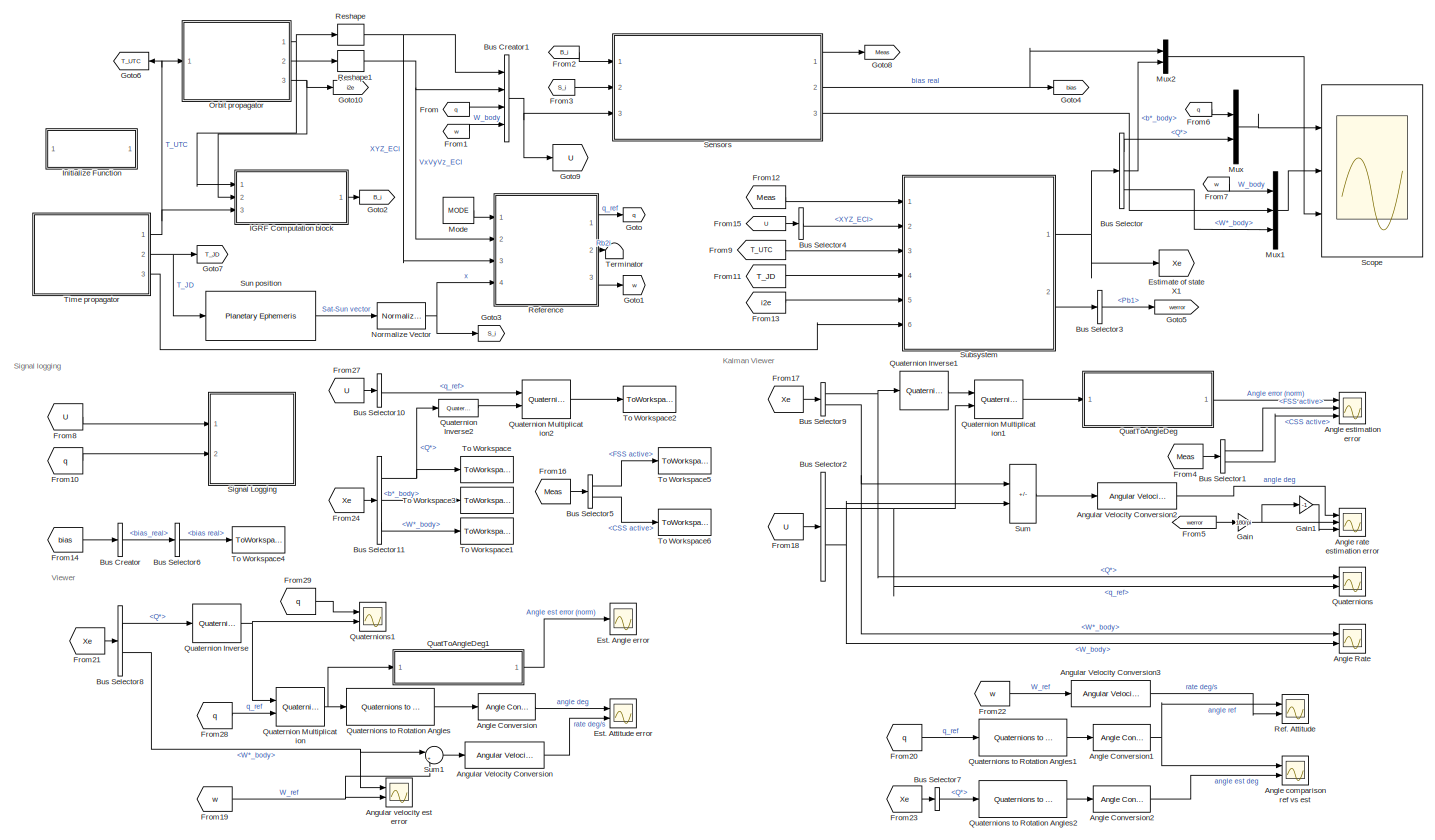
[diagram: root canvas - part 1/1, most of the canvas]
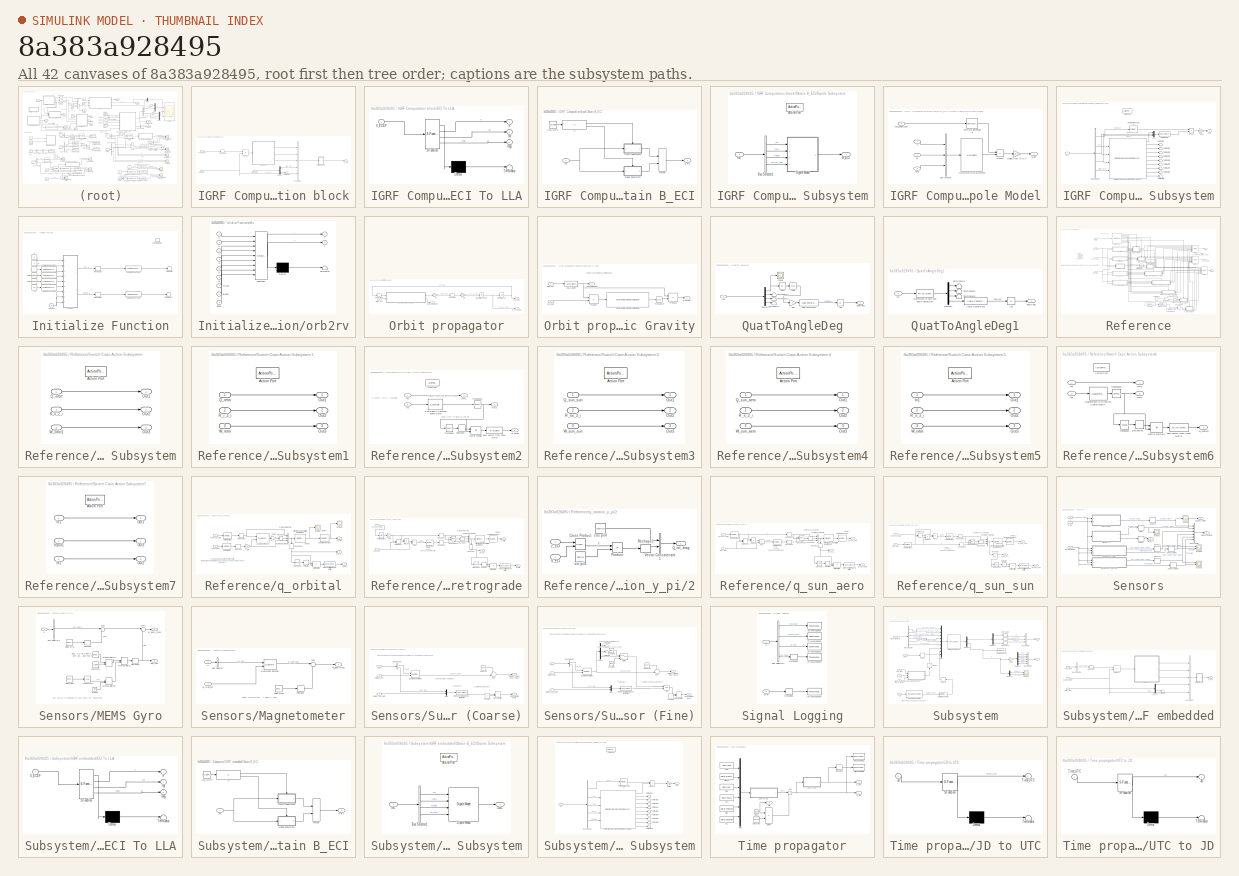
[diagram: thumbnail index - all 42 canvases of the model, root first then tree order]
MODEL slx_8a383a928495
KIND model
CONFIG AbsTol = auto
CONFIG EnableMultiTasking = off
CONFIG FixedStep = delta_t
CONFIG MaxStep = auto
CONFIG MinStep = auto
CONFIG RelTol = 1e-3
CONFIG SampleTimeConstraint = Unconstrained
CONFIG SolverName = FixedStepAuto
CONFIG StartTime = 0.0
CONFIG StopTime = tsimulation
BLOCK [Reference] Angle Conversion  REF=aerolibconvert2/Angle Conversion
  Ports = [1, 1]
  SourceBlock = aerolibconvert2/Angle Conversion
  SourceProductBaseCode = AE
  SourceType = Angle Conversion
BLOCK [Reference] Angle Conversion1  REF=aerolibconvert2/Angle Conversion
  Ports = [1, 1]
  SourceBlock = aerolibconvert2/Angle Conversion
  SourceProductBaseCode = AE
  SourceType = Angle Conversion
BLOCK [Reference] Angle Conversion2  REF=aerolibconvert2/Angle Conversion
  Ports = [1, 1]
  SourceBlock = aerolibconvert2/Angle Conversion
  SourceProductBaseCode = AE
  SourceType = Angle Conversion
BLOCK [Scope] Angle Rate
  Floating = off
  NumInputPorts = 2
  Ports = [2]
  ScopeSpecificationString = Simulink.scopes.TimeScopeBlockCfg('CurrentConfiguration', extmgr.ConfigurationSet(extmgr.Configuration('Core','General UI',true,'FigureColor',[1 1 1]),extmgr.Configuration('Core','Source UI',true),extmgr.Configuration('Sources','WiredSimulink',true,'DataLoggingVariableName','ScopeData1'),extmgr.Configuration('Visuals','Time Domain',true,'SerializedDisplays',{struct('MinYLimReal','-0.00105','MaxYLi...<+1819ch>
BLOCK [Scope] Angle comparison ref vs est
  Floating = off
  NumInputPorts = 2
  Ports = [2]
  ScopeSpecificationString = Simulink.scopes.TimeScopeBlockCfg('CurrentConfiguration', extmgr.ConfigurationSet(extmgr.Configuration('Core','General UI',true,'FigureColor',[0 0 0]),extmgr.Configuration('Core','Source UI',true),extmgr.Configuration('Sources','WiredSimulink',true,'DataLoggingVariableName','ScopeData1'),extmgr.Configuration('Visuals','Time Domain',true,'TimeAxisLabels','All','SerializedDisplays',{struct('MinYLimR...<+2642ch>
BLOCK [Scope] Angle estimation error
  Floating = off
  NumInputPorts = 3
  Ports = [3]
  ScopeSpecificationString = Simulink.scopes.TimeScopeBlockCfg('CurrentConfiguration', extmgr.ConfigurationSet(extmgr.Configuration('Core','General UI',true,'FigureColor',[1 1 1]),extmgr.Configuration('Core','Source UI',true),extmgr.Configuration('Sources','WiredSimulink',true,'DataLoggingVariableName','ScopeData2'),extmgr.Configuration('Visuals','Time Domain',true,'SerializedDisplays',{struct('MinYLimReal','-3.60179','MaxYLi...<+2987ch>
BLOCK [Scope] Angle rate estimation error
  Floating = off
  NumInputPorts = 3
  Ports = [3]
  ScopeSpecificationString = Simulink.scopes.TimeScopeBlockCfg('CurrentConfiguration', extmgr.ConfigurationSet(extmgr.Configuration('Core','General UI',true,'FigureColor',[1 1 1]),extmgr.Configuration('Core','Source UI',true),extmgr.Configuration('Sources','WiredSimulink',true,'DataLoggingVariableName','ScopeData3'),extmgr.Configuration('Visuals','Time Domain',true,'SerializedDisplays',{struct('MinYLimReal','-0.59224','MaxYLi...<+1989ch>
BLOCK [Reference] Angular Velocity Conversion  REF=aerolibconvert2/Angular Velocity
Conversion
  Ports = [1, 1]
  SourceBlock = aerolibconvert2/Angular Velocity\nConversion
  SourceProductBaseCode = AE
  SourceType = Angular Velocity Conversion
BLOCK [Reference] Angular Velocity Conversion2  REF=aerolibconvert2/Angular Velocity
Conversion
  Ports = [1, 1]
  SourceBlock = aerolibconvert2/Angular Velocity\nConversion
  SourceProductBaseCode = AE
  SourceType = Angular Velocity Conversion
BLOCK [Reference] Angular Velocity Conversion3  REF=aerolibconvert2/Angular Velocity
Conversion
  Ports = [1, 1]
  SourceBlock = aerolibconvert2/Angular Velocity\nConversion
  SourceProductBaseCode = AE
  SourceType = Angular Velocity Conversion
BLOCK [Scope] Angular velocity est error
  Floating = off
  NumInputPorts = 2
  Ports = [2]
  ScopeSpecificationString = Simulink.scopes.TimeScopeBlockCfg('CurrentConfiguration', extmgr.ConfigurationSet(extmgr.Configuration('Core','General UI',true),extmgr.Configuration('Core','Source UI',true),extmgr.Configuration('Sources','WiredSimulink',true,'DataLoggingVariableName','ScopeData3'),extmgr.Configuration('Visuals','Time Domain',true,'SerializedDisplays',{struct('MinYLimReal','-0.08945','MaxYLimReal','0.1069','YLabe...<+2286ch>
BLOCK [BusCreator] Bus Creator
  DisplayOption = bar
  InheritFromInputs = on
  Inputs = 1
  Ports = [1, 1]
BLOCK [BusCreator] Bus Creator1
  DisplayOption = bar
  InheritFromInputs = on
  Inputs = 4
  Ports = [4, 1]
BLOCK [BusSelector] Bus Selector
  OutputSignals = Q*,b*_body,W*_body
  Ports = [1, 3]
BLOCK [BusSelector] Bus Selector1
  OutputSignals = FSS active,CSS active
  Ports = [1, 2]
BLOCK [BusSelector] Bus Selector10
  OutputSignals = q_ref
  Ports = [1, 1]
BLOCK [BusSelector] Bus Selector11
  OutputSignals = Q*,b*_body,W*_body
  Ports = [1, 3]
BLOCK [BusSelector] Bus Selector2
  OutputSignals = q_ref,W_body
  Ports = [1, 2]
BLOCK [BusSelector] Bus Selector3
  OutputSignals = Pb1
  Ports = [1, 1]
BLOCK [BusSelector] Bus Selector4
  OutputSignals = XYZ_ECI
  Ports = [1, 1]
BLOCK [BusSelector] Bus Selector5
  OutputSignals = FSS active,CSS active
  Ports = [1, 2]
BLOCK [BusSelector] Bus Selector6
  OutputSignals = bias real
  Ports = [1, 1]
BLOCK [BusSelector] Bus Selector7
  OutputSignals = Q*
  Ports = [1, 1]
BLOCK [BusSelector] Bus Selector8
  OutputSignals = Q*,W*_body
  Ports = [1, 2]
BLOCK [BusSelector] Bus Selector9
  OutputSignals = Q*,W*_body
  Ports = [1, 2]
BLOCK [Scope] Est. Angle error
  Floating = off
  NumInputPorts = 1
  Ports = [1]
  ScopeSpecificationString = Simulink.scopes.TimeScopeBlockCfg('CurrentConfiguration', extmgr.ConfigurationSet(extmgr.Configuration('Core','General UI',true,'FigureColor',[0 0 0]),extmgr.Configuration('Core','Source UI',true),extmgr.Configuration('Sources','WiredSimulink',true,'DataLoggingVariableName','ScopeData2'),extmgr.Configuration('Visuals','Time Domain',true,'SerializedDisplays',{struct('MinYLimReal','-3.96833','MaxYLi...<+2514ch>
BLOCK [Scope] Est. Attitude error
  Floating = off
  NumInputPorts = 2
  Ports = [2]
  ScopeSpecificationString = Simulink.scopes.TimeScopeBlockCfg('CurrentConfiguration', extmgr.ConfigurationSet(extmgr.Configuration('Core','General UI',true,'FigureColor',[0 0 0]),extmgr.Configuration('Core','Source UI',true),extmgr.Configuration('Sources','WiredSimulink',true,'DataLoggingVariableName','ScopeData4'),extmgr.Configuration('Visuals','Time Domain',true,'TimeAxisLabels','All','SerializedDisplays',{struct('MinYLimR...<+2609ch>
BLOCK [Goto] Estimate of state X1
  GotoTag = Xe
  NameLocation = right
BLOCK [From] From
  GotoTag = q
BLOCK [From] From1
  GotoTag = w
BLOCK [From] From10
  GotoTag = q
BLOCK [From] From11
  GotoTag = T_JD
BLOCK [From] From12
  GotoTag = Meas
BLOCK [From] From13
  GotoTag = i2e
BLOCK [From] From14
  GotoTag = bias
BLOCK [From] From15
  GotoTag = U
BLOCK [From] From16
  GotoTag = Meas
BLOCK [From] From17
  GotoTag = Xe
BLOCK [From] From18
  GotoTag = U
BLOCK [From] From19
  GotoTag = w
BLOCK [From] From2
  GotoTag = B_i
BLOCK [From] From20
  GotoTag = q
BLOCK [From] From21
  GotoTag = Xe
BLOCK [From] From22
  GotoTag = w
BLOCK [From] From23
  GotoTag = Xe
BLOCK [From] From24
  GotoTag = Xe
BLOCK [From] From27
  GotoTag = U
BLOCK [From] From28
  GotoTag = q
BLOCK [From] From29
  GotoTag = q
BLOCK [From] From3
  GotoTag = S_i
BLOCK [From] From4
  GotoTag = Meas
BLOCK [From] From5
  GotoTag = werror
BLOCK [From] From6
  GotoTag = q
BLOCK [From] From7
  GotoTag = w
BLOCK [From] From8
  GotoTag = U
BLOCK [From] From9
  GotoTag = T_UTC
BLOCK [Gain] Gain
  Gain = 180/pi
BLOCK [Gain] Gain1
  Gain = -1
BLOCK [Goto] Goto
  GotoTag = q
BLOCK [Goto] Goto1
  GotoTag = w
BLOCK [Goto] Goto10
  GotoTag = i2e
BLOCK [Goto] Goto2
  GotoTag = B_i
BLOCK [Goto] Goto3
  GotoTag = S_i
BLOCK [Goto] Goto4
  GotoTag = bias
BLOCK [Goto] Goto5
  GotoTag = werror
BLOCK [Goto] Goto6
  GotoTag = T_UTC
  NameLocation = top
BLOCK [Goto] Goto7
  GotoTag = T_JD
BLOCK [Goto] Goto8
  GotoTag = Meas
BLOCK [Goto] Goto9
  GotoTag = U
BLOCK [SubSystem] IGRF Computation block
  NameLocation = top
  Ports = [3, 1]
  RequestExecContextInheritance = off
BLOCK [Inport] IGRF Computation block/<XYZ_ECI>
BLOCK [Outport] IGRF Computation block/B_ECI
  VectorParamsAs1DForOutWhenUnconnected = off
BLOCK [BusCreator] IGRF Computation block/Bus Creator
  DisplayOption = bar
  InheritFromInputs = on
  Inputs = 5
  Ports = [5, 1]
BLOCK [Inport] IGRF Computation block/DCM_i2e 
  Port = 2
BLOCK [Demux] IGRF Computation block/Demux
  Outputs = 2
  Ports = [1, 2]
BLOCK [SubSystem] IGRF Computation block/ECI To LLA
  ErrorFcn = Stateflow.Translate.translate
  PermitHierarchicalResolution = ExplicitOnly
  Ports = [1, 3]
  RequestExecContextInheritance = off
  SFBlockType = MATLAB Function
  TreatAsAtomicUnit = on
BLOCK [Demux] IGRF Computation block/ECI To LLA/ Demux 
  Outputs = 1
  Ports = [1, 1]
BLOCK [S-Function] IGRF Computation block/ECI To LLA/ SFunction 
  EnableBusSupport = on
  FunctionName = sf_sfun
  PortCounts = [1 4]
  Ports = [1, 4]
  SFcnIsStateOwnerBlock = off
  SFunctionDeploymentMode = off
  Tag = Stateflow S-Function 3
BLOCK [Terminator] IGRF Computation block/ECI To LLA/ Terminator 
BLOCK [Inport] IGRF Computation block/ECI To LLA/X_ECEF
BLOCK [Outport] IGRF Computation block/ECI To LLA/h
  VectorParamsAs1DForOutWhenUnconnected = off
BLOCK [Outport] IGRF Computation block/ECI To LLA/lat
  Port = 2
  VectorParamsAs1DForOutWhenUnconnected = off
BLOCK [Outport] IGRF Computation block/ECI To LLA/long
  Port = 3
  VectorParamsAs1DForOutWhenUnconnected = off
BLOCK [SubSystem] IGRF Computation block/Obtain B_ECI
  Ports = [1, 1]
  RequestExecContextInheritance = off
BLOCK [SubSystem] IGRF Computation block/Obtain B_ECI/Dipole Subsystem
  Ports = [1, 1, 0, 0, 0, 0, 0, 1]
  RequestExecContextInheritance = off
  TreatAsAtomicUnit = on
BLOCK [ActionPort] IGRF Computation block/Obtain B_ECI/Dipole Subsystem/Action Port
BLOCK [Outport] IGRF Computation block/Obtain B_ECI/Dipole Subsystem/B_ECI 
  VectorParamsAs1DForOutWhenUnconnected = off
BLOCK [BusSelector] IGRF Computation block/Obtain B_ECI/Dipole Subsystem/Bus Selector1
  OutputSignals = h,lat,long,DCM_i2e
  Ports = [1, 4]
BLOCK [SubSystem] IGRF Computation block/Obtain B_ECI/Dipole Subsystem/Dipole Model
  AncestorBlock = DipoleModel/Dipole Model
  Ports = [4, 1]
  RequestExecContextInheritance = off
BLOCK [Outport] IGRF Computation block/Obtain B_ECI/Dipole Subsystem/Dipole Model/B_ECI 
  VectorParamsAs1DForOutWhenUnconnected = off
BLOCK [BusCreator] IGRF Computation block/Obtain B_ECI/Dipole Subsystem/Dipole Model/Bus Creator
  DisplayOption = bar
  InheritFromInputs = on
  Inputs = 3
  Ports = [3, 1]
BLOCK [Inport] IGRF Computation block/Obtain B_ECI/Dipole Subsystem/Dipole Model/ECI2ECEF_DCM
  Port = 4
BLOCK [MATLABFcn] IGRF Computation block/Obtain B_ECI/Dipole Subsystem/Dipole Model/Interpreted MATLAB Function
  MATLABFcn = DipoleMod(u(1),u(2),u(3),date_IGRF,nmax)
  Ports = [1, 1]
BLOCK [PermuteDimensions] IGRF Computation block/Obtain B_ECI/Dipole Subsystem/Dipole Model/Permute Dimensions
BLOCK [Product] IGRF Computation block/Obtain B_ECI/Dipole Subsystem/Dipole Model/Product
  Multiplication = Matrix(*)
  Ports = [2, 1]
BLOCK [Inport] IGRF Computation block/Obtain B_ECI/Dipole Subsystem/Dipole Model/h
BLOCK [Inport] IGRF Computation block/Obtain B_ECI/Dipole Subsystem/Dipole Model/lat 
  Port = 2
BLOCK [Inport] IGRF Computation block/Obtain B_ECI/Dipole Subsystem/Dipole Model/long
  Port = 3
BLOCK [Gain] IGRF Computation block/Obtain B_ECI/Dipole Subsystem/Dipole Model/scaling from nT to T
  Gain = 1e-9
BLOCK [Inport] IGRF Computation block/Obtain B_ECI/Dipole Subsystem/In1
BLOCK [SubSystem] IGRF Computation block/Obtain B_ECI/IGRF Subsystem
  Ports = [1, 1, 0, 0, 0, 0, 0, 1]
  RequestExecContextInheritance = off
  TreatAsAtomicUnit = on
BLOCK [ActionPort] IGRF Computation block/Obtain B_ECI/IGRF Subsystem/Action Port
BLOCK [BusSelector] IGRF Computation block/Obtain B_ECI/IGRF Subsystem/Bus Selector
  OutputSignals = DCM_i2e,h,lat,long,time_UTC
  Ports = [1, 5]
BLOCK [Inport] IGRF Computation block/Obtain B_ECI/IGRF Subsystem/In1
BLOCK [Reference] IGRF Computation block/Obtain B_ECI/IGRF Subsystem/International Geomagnetic Reference Field 12  REF=aerolibobsolete/International Geomagnetic Reference Field 12
  Ports = [4, 10]
  SourceBlock = aerolibobsolete/International Geomagnetic Reference Field 12
  SourceProductBaseCode = AE
  SourceType = InternationalGeomagneticReferenceField12
BLOCK [Mux] IGRF Computation block/Obtain B_ECI/IGRF Subsystem/Mux
  DisplayOption = bar
  Inputs = 3
  Ports = [3, 1]
BLOCK [MATLABFcn] IGRF Computation block/Obtain B_ECI/IGRF Subsystem/NED to ECEF
  MATLABFcn = NED2ecef
  Output1D = off
  OutputDimensions = [3;1]
  Ports = [1, 1]
BLOCK [Outport] IGRF Computation block/Obtain B_ECI/IGRF Subsystem/Out1
  VectorParamsAs1DForOutWhenUnconnected = off
BLOCK [PermuteDimensions] IGRF Computation block/Obtain B_ECI/IGRF Subsystem/Permute Dimensions
BLOCK [Product] IGRF Computation block/Obtain B_ECI/IGRF Subsystem/Product
  Multiplication = Matrix(*)
  Ports = [2, 1]
BLOCK [Gain] IGRF Computation block/Obtain B_ECI/IGRF Subsystem/T to nT
  Gain = 1E-9
BLOCK [Terminator] IGRF Computation block/Obtain B_ECI/IGRF Subsystem/Terminator1
BLOCK [Terminator] IGRF Computation block/Obtain B_ECI/IGRF Subsystem/Terminator2
BLOCK [Terminator] IGRF Computation block/Obtain B_ECI/IGRF Subsystem/Terminator3
BLOCK [Terminator] IGRF Computation block/Obtain B_ECI/IGRF Subsystem/Terminator4
BLOCK [Terminator] IGRF Computation block/Obtain B_ECI/IGRF Subsystem/Terminator5
BLOCK [Terminator] IGRF Computation block/Obtain B_ECI/IGRF Subsystem/Terminator6
BLOCK [Terminator] IGRF Computation block/Obtain B_ECI/IGRF Subsystem/Terminator7
BLOCK [Terminator] IGRF Computation block/Obtain B_ECI/IGRF Subsystem/Terminator8
BLOCK [Terminator] IGRF Computation block/Obtain B_ECI/IGRF Subsystem/Terminator9
BLOCK [If] IGRF Computation block/Obtain B_ECI/If
  Ports = [1, 2]
BLOCK [Inport] IGRF Computation block/Obtain B_ECI/In1
BLOCK [Merge] IGRF Computation block/Obtain B_ECI/Merge
  Ports = [2, 1]
BLOCK [Outport] IGRF Computation block/Obtain B_ECI/Out1
  VectorParamsAs1DForOutWhenUnconnected = off
BLOCK [Constant] IGRF Computation block/Obtain B_ECI/Use_IGRF
  Value = Use_IGRF
BLOCK [Product] IGRF Computation block/Product
  Multiplication = Matrix(*)
  Ports = [2, 1]
BLOCK [Reshape] IGRF Computation block/Reshape
  OutputDimensionality = Row vector (2-D)
  Ports = [1, 1]
BLOCK [Terminator] IGRF Computation block/Terminator
BLOCK [Inport] IGRF Computation block/Time_UTC 
  Port = 3
BLOCK [SubSystem] Initialize Function
  Ports = []
  RequestExecContextInheritance = off
  TreatAsAtomicUnit = on
BLOCK [Reference] Initialize Function/Angle Conversion2  REF=aerolibconvert2/Angle Conversion
  Ports = [1, 1]
  SourceBlock = aerolibconvert2/Angle Conversion
  SourceProductBaseCode = AE
  SourceType = Angle Conversion
BLOCK [Reference] Initialize Function/Angle Conversion3  REF=aerolibconvert2/Angle Conversion
  Ports = [1, 1]
  SourceBlock = aerolibconvert2/Angle Conversion
  SourceProductBaseCode = AE
  SourceType = Angle Conversion
BLOCK [Reference] Initialize Function/Angle Conversion4  REF=aerolibconvert2/Angle Conversion
  Ports = [1, 1]
  SourceBlock = aerolibconvert2/Angle Conversion
  SourceProductBaseCode = AE
  SourceType = Angle Conversion
BLOCK [Reference] Initialize Function/Angle Conversion5  REF=aerolibconvert2/Angle Conversion
  Ports = [1, 1]
  SourceBlock = aerolibconvert2/Angle Conversion
  SourceProductBaseCode = AE
  SourceType = Angle Conversion
BLOCK [EventListener] Initialize Function/Event Listener
  DisableCoverage = on
  EventName = reset
BLOCK [Ground] Initialize Function/Ground
BLOCK [Reference] Initialize Function/Length Conversion  REF=aerolibconvert2/Length Conversion
  Ports = [1, 1]
  SourceBlock = aerolibconvert2/Length Conversion
  SourceProductBaseCode = AE
  SourceType = Length Conversion
BLOCK [Constant] Initialize Function/O
  Value = O
BLOCK [Reshape] Initialize Function/Reshape2
  OutputDimensionality = Column vector (2-D)
  Ports = [1, 1]
BLOCK [Reshape] Initialize Function/Reshape3
  OutputDimensionality = Column vector (2-D)
  Ports = [1, 1]
BLOCK [StateWriter] Initialize Function/State Writer
  StateOwnerBlock = ../../Orbit propagator/Integrator_pos
BLOCK [StateWriter] Initialize Function/State Writer1
  StateOwnerBlock = ../../Orbit propagator/Integrator_speed
BLOCK [Reference] Initialize Function/Velocity Conversion  REF=aerolibconvert2/Velocity Conversion
  Ports = [1, 1]
  SourceBlock = aerolibconvert2/Velocity Conversion
  SourceProductBaseCode = AE
  SourceType = Velocity Conversion
BLOCK [Constant] Initialize Function/a
  Value = a
BLOCK [Constant] Initialize Function/e
  Value = e
BLOCK [Constant] Initialize Function/i
  Value = i
BLOCK [Constant] Initialize Function/nu
  Value = nu
BLOCK [Constant] Initialize Function/o
  Value = o
BLOCK [SubSystem] Initialize Function/orb2rv
  ErrorFcn = Stateflow.Translate.translate
  PermitHierarchicalResolution = ExplicitOnly
  Ports = [9, 2]
  RequestExecContextInheritance = off
  SFBlockType = MATLAB Function
  TreatAsAtomicUnit = on
BLOCK [Demux] Initialize Function/orb2rv/ Demux 
  Outputs = 1
  Ports = [1, 1]
BLOCK [S-Function] Initialize Function/orb2rv/ SFunction 
  EnableBusSupport = on
  FunctionName = sf_sfun
  PortCounts = [9 3]
  Ports = [9, 3]
  SFcnIsStateOwnerBlock = off
  SFunctionDeploymentMode = off
  Tag = Stateflow S-Function 5
BLOCK [Terminator] Initialize Function/orb2rv/ Terminator 
BLOCK [Inport] Initialize Function/orb2rv/O
  Port = 4
BLOCK [Inport] Initialize Function/orb2rv/a
BLOCK [Inport] Initialize Function/orb2rv/argLat
  Port = 8
BLOCK [Inport] Initialize Function/orb2rv/e
  Port = 2
BLOCK [Inport] Initialize Function/orb2rv/i
  Port = 3
BLOCK [Inport] Initialize Function/orb2rv/lonPer
  Port = 9
BLOCK [Inport] Initialize Function/orb2rv/nu
  Port = 6
BLOCK [Inport] Initialize Function/orb2rv/o
  Port = 5
BLOCK [Outport] Initialize Function/orb2rv/r
  VectorParamsAs1DForOutWhenUnconnected = off
BLOCK [Inport] Initialize Function/orb2rv/truLon
  Port = 7
BLOCK [Outport] Initialize Function/orb2rv/v
  Port = 2
  VectorParamsAs1DForOutWhenUnconnected = off
BLOCK [Constant] Mode
  NameLocation = top
  OutDataTypeStr = int8
  Value = MODE
BLOCK [Mux] Mux
  DisplayOption = bar
  Inputs = 2
  Ports = [2, 1]
BLOCK [Mux] Mux1
  DisplayOption = bar
  Inputs = 3
  Ports = [3, 1]
BLOCK [Mux] Mux2
  DisplayOption = bar
  Inputs = 2
  Ports = [2, 1]
BLOCK [Reference] Normalize Vector  REF=vrlib/Utilities/Normalize Vector
  Ports = [1, 1]
  SourceBlock = vrlib/Utilities/Normalize Vector
  SourceProductBaseCode = SL
  SourceType = Normalize Vector
BLOCK [SubSystem] Orbit propagator
  Ports = [1, 3]
  RequestExecContextInheritance = off
BLOCK [Gain] Orbit propagator/1//m
  Gain = 1/m
BLOCK [Outport] Orbit propagator/DCM_ECI2ECEF
  Port = 3
BLOCK [Integrator] Orbit propagator/Integrator_pos
  Ports = [1, 1]
BLOCK [Integrator] Orbit propagator/Integrator_speed
  Ports = [1, 1]
BLOCK [Reshape] Orbit propagator/Reshape
  OutputDimensionality = Column vector (2-D)
  Ports = [1, 1]
BLOCK [Reshape] Orbit propagator/Reshape2
  OutputDimensionality = Column vector (2-D)
  Ports = [1, 1]
BLOCK [SubSystem] Orbit propagator/Spherical Harmonic Gravity
  Ports = [2, 2]
  RequestExecContextInheritance = off
  SystemSampleTime = 1
  TreatAsAtomicUnit = on
BLOCK [Outport] Orbit propagator/Spherical Harmonic Gravity/DCM_ECI2ECEF
  Port = 2
BLOCK [MATLABFcn] Orbit propagator/Spherical Harmonic Gravity/ECI_2_ECEF
  MATLABFcn = eci2ecef
  Output1D = off
  OutputDimensions = [3,3]
  Ports = [1, 1]
BLOCK [Product] Orbit propagator/Spherical Harmonic Gravity/Product
  Multiplication = Matrix(*)
  Ports = [2, 1]
BLOCK [Product] Orbit propagator/Spherical Harmonic Gravity/Product1
  Inputs = /*
  Multiplication = Matrix(*)
  Ports = [2, 1]
BLOCK [Reference] Orbit propagator/Spherical Harmonic Gravity/Spherical Harmonic Gravity Model  REF=aerolibgravity2/Spherical Harmonic Gravity Model
  Ports = [1, 1]
  SourceBlock = aerolibgravity2/Spherical Harmonic Gravity Model
  SourceProductBaseCode = AE
  SourceType = Spherical Harmonic Gravity Model
BLOCK [Inport] Orbit propagator/Spherical Harmonic Gravity/Time_UTC
  Port = 2
BLOCK [Math] Orbit propagator/Spherical Harmonic Gravity/Transpose
  Operator = transpose
  Ports = [1, 1]
  SignedPower = on
BLOCK [Inport] Orbit propagator/Spherical Harmonic Gravity/XYZ_ECI
BLOCK [Outport] Orbit propagator/Spherical Harmonic Gravity/g_ECI (m//s²)
BLOCK [Inport] Orbit propagator/Time_UTC 
BLOCK [Outport] Orbit propagator/VxVyVz_ECI
  Port = 2
BLOCK [Outport] Orbit propagator/XYZ_ECI
  VectorParamsAs1DForOutWhenUnconnected = off
BLOCK [Gain] Orbit propagator/m
  Gain = m
BLOCK [SubSystem] QuatToAngleDeg
  Ports = [1, 1]
  RequestExecContextInheritance = off
BLOCK [Abs] QuatToAngleDeg/Abs
  SaturateOnIntegerOverflow = off
BLOCK [Abs] QuatToAngleDeg/Abs1
  SaturateOnIntegerOverflow = off
BLOCK [Trigonometry] QuatToAngleDeg/Acos
  Operator = acos
  Ports = [1, 1]
BLOCK [Reference] QuatToAngleDeg/Angle Conversion1  REF=aerolibconvert2/Angle Conversion
  Ports = [1, 1]
  SourceBlock = aerolibconvert2/Angle Conversion
  SourceProductBaseCode = AE
  SourceType = Angle Conversion
BLOCK [Demux] QuatToAngleDeg/Demux1
  Ports = [1, 4]
BLOCK [Gain] QuatToAngleDeg/Gain
  Gain = 2
BLOCK [Inport] QuatToAngleDeg/In1
BLOCK [Scope] QuatToAngleDeg/Scope
  Floating = off
  NumInputPorts = 1
  Ports = [1]
  ScopeSpecificationString = Simulink.scopes.TimeScopeBlockCfg('CurrentConfiguration', extmgr.ConfigurationSet(extmgr.Configuration('Core','General UI',true),extmgr.Configuration('Core','Source UI',true),extmgr.Configuration('Sources','WiredSimulink',true,'DataLoggingVariableName','ScopeData1'),extmgr.Configuration('Visuals','Time Domain',true,'SerializedDisplays',{struct('MinYLimReal','-1.25','MaxYLimReal','1.24999','YLabelR...<+1385ch>
BLOCK [Terminator] QuatToAngleDeg/Terminator1
BLOCK [Terminator] QuatToAngleDeg/Terminator2
BLOCK [Terminator] QuatToAngleDeg/Terminator3
BLOCK [Outport] QuatToAngleDeg/angle deg
  VectorParamsAs1DForOutWhenUnconnected = off
BLOCK [SubSystem] QuatToAngleDeg1
  NameLocation = top
  Ports = [1, 1]
  RequestExecContextInheritance = off
BLOCK [Abs] QuatToAngleDeg1/Abs
  SaturateOnIntegerOverflow = off
BLOCK [Reference] QuatToAngleDeg1/Angle Conversion1  REF=aerolibconvert2/Angle Conversion
  Ports = [1, 1]
  SourceBlock = aerolibconvert2/Angle Conversion
  SourceProductBaseCode = AE
  SourceType = Angle Conversion
BLOCK [Demux] QuatToAngleDeg1/Demux1
  Ports = [1, 4]
BLOCK [Inport] QuatToAngleDeg1/In1
BLOCK [MATLABFcn] QuatToAngleDeg1/Quaternion to axis and angle conversion
  MATLABFcn = quat2axisangle
  Ports = [1, 1]
BLOCK [Terminator] QuatToAngleDeg1/Terminator1
BLOCK [Terminator] QuatToAngleDeg1/Terminator2
BLOCK [Terminator] QuatToAngleDeg1/Terminator3
BLOCK [Outport] QuatToAngleDeg1/angle deg
  VectorParamsAs1DForOutWhenUnconnected = off
BLOCK [Reference] Quaternion Inverse  REF=aerolibutil/Quaternion
Inverse
  Ports = [1, 1]
  SourceBlock = aerolibutil/Quaternion\nInverse
  SourceProductBaseCode = AE
  SourceType = Quaternion Inverse
BLOCK [Reference] Quaternion Inverse1  REF=aerolibutil/Quaternion
Inverse
  Ports = [1, 1]
  SourceBlock = aerolibutil/Quaternion\nInverse
  SourceProductBaseCode = AE
  SourceType = Quaternion Inverse
BLOCK [Reference] Quaternion Inverse2  REF=aerolibutil/Quaternion
Inverse
  Ports = [1, 1]
  SourceBlock = aerolibutil/Quaternion\nInverse
  SourceProductBaseCode = AE
  SourceType = Quaternion Inverse
BLOCK [Reference] Quaternion Multiplication  REF=aerolibutil/Quaternion
Multiplication
  Ports = [2, 1]
  SourceBlock = aerolibutil/Quaternion\nMultiplication
  SourceProductBaseCode = AE
  SourceType = Quaternion Multiplication
BLOCK [Reference] Quaternion Multiplication1  REF=aerolibutil/Quaternion
Multiplication
  Ports = [2, 1]
  SourceBlock = aerolibutil/Quaternion\nMultiplication
  SourceProductBaseCode = AE
  SourceType = Quaternion Multiplication
BLOCK [Reference] Quaternion Multiplication2  REF=aerolibutil/Quaternion
Multiplication
  Ports = [2, 1]
  SourceBlock = aerolibutil/Quaternion\nMultiplication
  SourceProductBaseCode = AE
  SourceType = Quaternion Multiplication
BLOCK [Scope] Quaternions
  Floating = off
  NumInputPorts = 2
  Ports = [2]
  ScopeSpecificationString = Simulink.scopes.TimeScopeBlockCfg('CurrentConfiguration', extmgr.ConfigurationSet(extmgr.Configuration('Core','General UI',true,'FigureColor',[1 1 1]),extmgr.Configuration('Core','Source UI',true),extmgr.Configuration('Sources','WiredSimulink',true,'DataLoggingVariableName','ScopeData4'),extmgr.Configuration('Visuals','Time Domain',true,'SerializedDisplays',{struct('MinYLimReal','-1.24999','MaxYLi...<+1787ch>
BLOCK [Reference] Quaternions to Rotation Angles  REF=sharedtransform/Quaternions to Rotation Angles
  AttributesFormatString = Rotation Order: %<rotationOrder>
  Ports = [1, 1]
  SourceBlock = sharedtransform/Quaternions to Rotation Angles
  SourceProductBaseCode = AE,PW,MT,UV,VE,VP
  SourceType = Quat2Ang
BLOCK [Reference] Quaternions to Rotation Angles1  REF=sharedtransform/Quaternions to Rotation Angles
  AttributesFormatString = Rotation Order: %<rotationOrder>
  Ports = [1, 1]
  SourceBlock = sharedtransform/Quaternions to Rotation Angles
  SourceProductBaseCode = AE,PW,MT,UV,VE,VP
  SourceType = Quat2Ang
BLOCK [Reference] Quaternions to Rotation Angles2  REF=sharedtransform/Quaternions to Rotation Angles
  AttributesFormatString = Rotation Order: %<rotationOrder>
  Ports = [1, 1]
  SourceBlock = sharedtransform/Quaternions to Rotation Angles
  SourceProductBaseCode = AE,PW,MT,UV,VE,VP
  SourceType = Quat2Ang
BLOCK [Scope] Quaternions1
  Floating = off
  NumInputPorts = 2
  Ports = [2]
  ScopeSpecificationString = Simulink.scopes.TimeScopeBlockCfg('CurrentConfiguration', extmgr.ConfigurationSet(extmgr.Configuration('Core','General UI',true),extmgr.Configuration('Core','Source UI',true),extmgr.Configuration('Sources','WiredSimulink',true,'DataLoggingVariableName','ScopeData7'),extmgr.Configuration('Visuals','Time Domain',true,'SerializedDisplays',{struct('MinYLimReal','-1.21502','MaxYLimReal','1.21501','YLab...<+2385ch>
BLOCK [Scope] Ref. Attitude
  Floating = off
  NumInputPorts = 2
  Ports = [2]
  ScopeSpecificationString = Simulink.scopes.TimeScopeBlockCfg('CurrentConfiguration', extmgr.ConfigurationSet(extmgr.Configuration('Core','General UI',true,'FigureColor',[0 0 0]),extmgr.Configuration('Core','Source UI',true),extmgr.Configuration('Sources','WiredSimulink',true,'DataLoggingVariableName','ScopeData9'),extmgr.Configuration('Visuals','Time Domain',true,'TimeAxisLabels','All','SerializedDisplays',{struct('MinYLimR...<+2637ch>
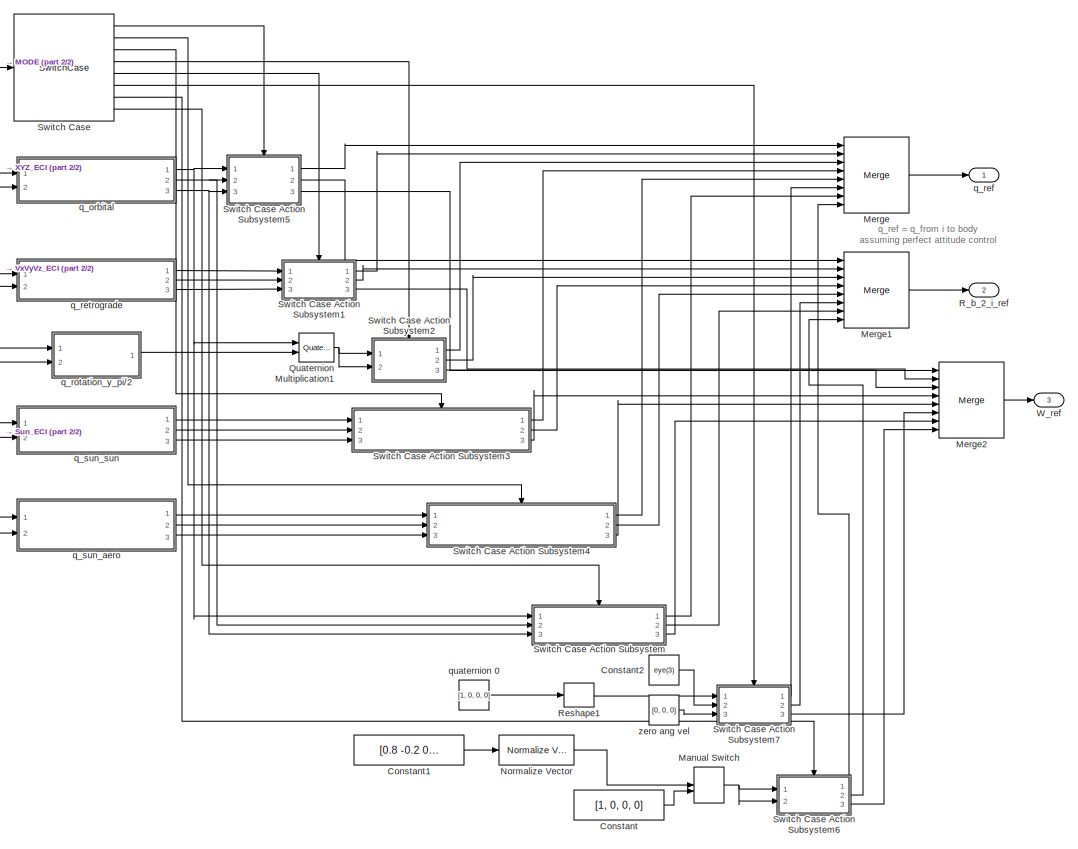
[diagram: Reference - part 1/2, center side, full height]
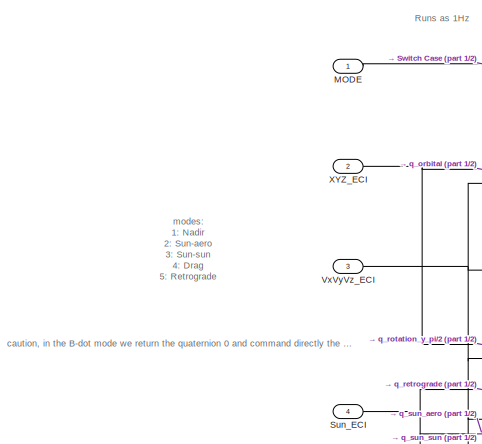
[diagram: Reference - part 2/2, top left region]
BLOCK [SubSystem] Reference
  Ports = [4, 3]
  RequestExecContextInheritance = off
  TreatAsAtomicUnit = on
BLOCK [Constant] Reference/Constant
  Value = [1, 0, 0, 0]
BLOCK [Constant] Reference/Constant1
  Value = [0.8 -0.2 0.1 0.5]'
BLOCK [Constant] Reference/Constant2
  Value = eye(3)
BLOCK [Inport] Reference/MODE
  OutDataTypeStr = int8
  OutMax = 100
  OutMin = 1
BLOCK [ManualSwitch] Reference/Manual Switch
BLOCK [Merge] Reference/Merge
  Inputs = 8
  Ports = [8, 1]
BLOCK [Merge] Reference/Merge1
  Inputs = 8
  Ports = [8, 1]
BLOCK [Merge] Reference/Merge2
  Inputs = 8
  Ports = [8, 1]
BLOCK [Reference] Reference/Normalize Vector  REF=vrlib/Utilities/Normalize Vector
  Ports = [1, 1]
  SourceBlock = vrlib/Utilities/Normalize Vector
  SourceProductBaseCode = SL
  SourceType = Normalize Vector
BLOCK [Reference] Reference/Quaternion Multiplication1  REF=aerolibutil/Quaternion
Multiplication
  Ports = [2, 1]
  SourceBlock = aerolibutil/Quaternion\nMultiplication
  SourceProductBaseCode = AE
  SourceType = Quaternion Multiplication
BLOCK [Outport] Reference/R_b_2_i_ref
  Port = 2
BLOCK [Reshape] Reference/Reshape1
  OutputDimensionality = Column vector (2-D)
  Ports = [1, 1]
BLOCK [Inport] Reference/Sun_ECI
  Port = 4
BLOCK [SwitchCase] Reference/Switch Case
  CaseConditions = {1, 2, 3, 4, 5, 6, 7}
  Ports = [1, 8]
BLOCK [SubSystem] Reference/Switch Case Action Subsystem
  Ports = [3, 3, 0, 0, 0, 0, 0, 1]
  RequestExecContextInheritance = off
  TreatAsAtomicUnit = on
BLOCK [ActionPort] Reference/Switch Case Action Subsystem/Action Port
  ActionPortLabel = default:
BLOCK [Outport] Reference/Switch Case Action Subsystem/Out1
  VectorParamsAs1DForOutWhenUnconnected = off
BLOCK [Outport] Reference/Switch Case Action Subsystem/Out2
  Port = 2
  VectorParamsAs1DForOutWhenUnconnected = off
BLOCK [Outport] Reference/Switch Case Action Subsystem/Out3
  Port = 3
  VectorParamsAs1DForOutWhenUnconnected = off
BLOCK [Inport] Reference/Switch Case Action Subsystem/Q_orbit
BLOCK [Inport] Reference/Switch Case Action Subsystem/R_o_2_i
  Port = 2
BLOCK [Inport] Reference/Switch Case Action Subsystem/W_orbit1
  Port = 3
BLOCK [SubSystem] Reference/Switch Case Action Subsystem1
  Ports = [3, 3, 0, 0, 0, 0, 0, 1]
  RequestExecContextInheritance = off
  TreatAsAtomicUnit = on
BLOCK [ActionPort] Reference/Switch Case Action Subsystem1/Action Port
  ActionPortLabel = case [ 5 ]:
BLOCK [Outport] Reference/Switch Case Action Subsystem1/Out1
  VectorParamsAs1DForOutWhenUnconnected = off
BLOCK [Outport] Reference/Switch Case Action Subsystem1/Out2
  Port = 2
  VectorParamsAs1DForOutWhenUnconnected = off
BLOCK [Outport] Reference/Switch Case Action Subsystem1/Out3
  Port = 3
  VectorParamsAs1DForOutWhenUnconnected = off
BLOCK [Inport] Reference/Switch Case Action Subsystem1/Q_retro
BLOCK [Inport] Reference/Switch Case Action Subsystem1/R_r_2_i
  Port = 2
BLOCK [Inport] Reference/Switch Case Action Subsystem1/W_retro
  Port = 3
BLOCK [SubSystem] Reference/Switch Case Action Subsystem2
  Ports = [2, 3, 0, 0, 0, 0, 0, 1]
  RequestExecContextInheritance = off
  TreatAsAtomicUnit = on
BLOCK [ActionPort] Reference/Switch Case Action Subsystem2/Action Port
  ActionPortLabel = case [ 4 ]:
BLOCK [Derivative] Reference/Switch Case Action Subsystem2/Derivative
BLOCK [Inport] Reference/Switch Case Action Subsystem2/In1
BLOCK [Inport] Reference/Switch Case Action Subsystem2/In2
  Port = 2
BLOCK [Product] Reference/Switch Case Action Subsystem2/Matrix Multiply
  Multiplication = Matrix(*)
  Ports = [2, 1]
BLOCK [Outport] Reference/Switch Case Action Subsystem2/Out1
  VectorParamsAs1DForOutWhenUnconnected = off
BLOCK [Outport] Reference/Switch Case Action Subsystem2/Out2
  Port = 2
  VectorParamsAs1DForOutWhenUnconnected = off
BLOCK [Reference] Reference/Switch Case Action Subsystem2/Quaternions to Direction Cosine Matrix  REF=sharedtransform/Quaternions to 
Direction Cosine Matrix
  Ports = [1, 1]
  SourceBlock = sharedtransform/Quaternions to \nDirection Cosine Matrix
  SourceProductBaseCode = AE,PW,MT,UV,VE,VP
  SourceType = Quaternion2DCM
BLOCK [Math] Reference/Switch Case Action Subsystem2/Transpose
  Operator = transpose
  Ports = [1, 1]
BLOCK [Math] Reference/Switch Case Action Subsystem2/Transpose1
  Operator = transpose
  Ports = [1, 1]
BLOCK [Outport] Reference/Switch Case Action Subsystem2/W_drag
  Port = 3
BLOCK [MATLABFcn] Reference/Switch Case Action Subsystem2/gets vector from Skew Matrix
  MATLABFcn = vec_from_skew
  Ports = [1, 1]
BLOCK [SubSystem] Reference/Switch Case Action Subsystem3
  Ports = [3, 3, 0, 0, 0, 0, 0, 1]
  RequestExecContextInheritance = off
  TreatAsAtomicUnit = on
BLOCK [ActionPort] Reference/Switch Case Action Subsystem3/Action Port
  ActionPortLabel = case [ 3 ]:
BLOCK [Outport] Reference/Switch Case Action Subsystem3/Out1
  VectorParamsAs1DForOutWhenUnconnected = off
BLOCK [Outport] Reference/Switch Case Action Subsystem3/Out2
  Port = 2
  VectorParamsAs1DForOutWhenUnconnected = off
BLOCK [Outport] Reference/Switch Case Action Subsystem3/Out3
  Port = 3
  VectorParamsAs1DForOutWhenUnconnected = off
BLOCK [Inport] Reference/Switch Case Action Subsystem3/Q_sun_sun
BLOCK [Inport] Reference/Switch Case Action Subsystem3/R_ss_2_i
  Port = 2
BLOCK [Inport] Reference/Switch Case Action Subsystem3/W_sun_sun
  Port = 3
BLOCK [SubSystem] Reference/Switch Case Action Subsystem4
  Ports = [3, 3, 0, 0, 0, 0, 0, 1]
  RequestExecContextInheritance = off
  TreatAsAtomicUnit = on
BLOCK [ActionPort] Reference/Switch Case Action Subsystem4/Action Port
  ActionPortLabel = case [ 2 ]:
BLOCK [Outport] Reference/Switch Case Action Subsystem4/Out1
  VectorParamsAs1DForOutWhenUnconnected = off
BLOCK [Outport] Reference/Switch Case Action Subsystem4/Out2
  Port = 2
  VectorParamsAs1DForOutWhenUnconnected = off
BLOCK [Outport] Reference/Switch Case Action Subsystem4/Out3
  Port = 3
  VectorParamsAs1DForOutWhenUnconnected = off
BLOCK [Inport] Reference/Switch Case Action Subsystem4/Q_sun_aero
BLOCK [Inport] Reference/Switch Case Action Subsystem4/R_s_2_i
  Port = 2
BLOCK [Inport] Reference/Switch Case Action Subsystem4/W_sun_aero
  Port = 3
BLOCK [SubSystem] Reference/Switch Case Action Subsystem5
  Ports = [3, 3, 0, 0, 0, 0, 0, 1]
  RequestExecContextInheritance = off
  TreatAsAtomicUnit = on
BLOCK [ActionPort] Reference/Switch Case Action Subsystem5/Action Port
  ActionPortLabel = case [ 1 ]:
BLOCK [Inport] Reference/Switch Case Action Subsystem5/In1
BLOCK [Outport] Reference/Switch Case Action Subsystem5/Out1
  VectorParamsAs1DForOutWhenUnconnected = off
BLOCK [Outport] Reference/Switch Case Action Subsystem5/Out2
  Port = 2
  VectorParamsAs1DForOutWhenUnconnected = off
BLOCK [Outport] Reference/Switch Case Action Subsystem5/Out3
  Port = 3
  VectorParamsAs1DForOutWhenUnconnected = off
BLOCK [Inport] Reference/Switch Case Action Subsystem5/R_o_2_i
  Port = 2
BLOCK [Inport] Reference/Switch Case Action Subsystem5/W_orbit
  Port = 3
BLOCK [SubSystem] Reference/Switch Case Action Subsystem6
  Ports = [2, 3, 0, 0, 0, 0, 0, 1]
  RequestExecContextInheritance = off
  TreatAsAtomicUnit = on
BLOCK [ActionPort] Reference/Switch Case Action Subsystem6/Action Port
  ActionPortLabel = case [ 7 ]:
BLOCK [Derivative] Reference/Switch Case Action Subsystem6/Derivative
BLOCK [Inport] Reference/Switch Case Action Subsystem6/In1
BLOCK [Inport] Reference/Switch Case Action Subsystem6/In2
  Port = 2
BLOCK [Product] Reference/Switch Case Action Subsystem6/Matrix Multiply
  Multiplication = Matrix(*)
  Ports = [2, 1]
BLOCK [Outport] Reference/Switch Case Action Subsystem6/Out1
  VectorParamsAs1DForOutWhenUnconnected = off
BLOCK [Outport] Reference/Switch Case Action Subsystem6/Out2
  Port = 2
  VectorParamsAs1DForOutWhenUnconnected = off
BLOCK [Reference] Reference/Switch Case Action Subsystem6/Quaternions to Direction Cosine Matrix  REF=sharedtransform/Quaternions to 
Direction Cosine Matrix
  Ports = [1, 1]
  SourceBlock = sharedtransform/Quaternions to \nDirection Cosine Matrix
  SourceProductBaseCode = AE,PW,MT,UV,VE,VP
  SourceType = Quaternion2DCM
BLOCK [Math] Reference/Switch Case Action Subsystem6/Transpose
  Operator = transpose
  Ports = [1, 1]
BLOCK [Math] Reference/Switch Case Action Subsystem6/Transpose1
  Operator = transpose
  Ports = [1, 1]
BLOCK [Outport] Reference/Switch Case Action Subsystem6/W_custom
  Port = 3
BLOCK [MATLABFcn] Reference/Switch Case Action Subsystem6/gets vector from Skew Matrix
  MATLABFcn = vec_from_skew
  Ports = [1, 1]
BLOCK [SubSystem] Reference/Switch Case Action Subsystem7
  Ports = [3, 3, 0, 0, 0, 0, 0, 1]
  RequestExecContextInheritance = off
  TreatAsAtomicUnit = on
BLOCK [ActionPort] Reference/Switch Case Action Subsystem7/Action Port
  ActionPortLabel = case [ 6 ]:
BLOCK [Inport] Reference/Switch Case Action Subsystem7/In1
BLOCK [Inport] Reference/Switch Case Action Subsystem7/In2
  Port = 3
BLOCK [Inport] Reference/Switch Case Action Subsystem7/Input1
  Port = 2
BLOCK [Outport] Reference/Switch Case Action Subsystem7/Out1
  VectorParamsAs1DForOutWhenUnconnected = off
BLOCK [Outport] Reference/Switch Case Action Subsystem7/Out2
  Port = 3
  VectorParamsAs1DForOutWhenUnconnected = off
BLOCK [Outport] Reference/Switch Case Action Subsystem7/Out3
  Port = 2
  VectorParamsAs1DForOutWhenUnconnected = off
BLOCK [Inport] Reference/VxVyVz_ECI
  Port = 3
BLOCK [Outport] Reference/W_ref
  Port = 3
BLOCK [Inport] Reference/XYZ_ECI
  Port = 2
BLOCK [SubSystem] Reference/q_orbital
  Ports = [2, 3]
  RequestExecContextInheritance = off
BLOCK [Reference] Reference/q_orbital/3x3 Cross Product  REF=sharedutil/3x3 Cross Product
  Ports = [2, 1]
  SourceBlock = sharedutil/3x3 Cross Product
  SourceProductBaseCode = AE,PW,MT,UV,VE,VP
  SourceType = CrossProduct
BLOCK [Inport] Reference/q_orbital/<VxVyVz_ECI>
  Port = 2
BLOCK [Inport] Reference/q_orbital/<XYZ_ECI>
BLOCK [Derivative] Reference/q_orbital/Derivative
BLOCK [Reference] Reference/q_orbital/Direction Cosine Matrix to Quaternions  REF=sharedtransform/Direction Cosine Matrix 
to Quaternions
  Ports = [1, 1]
  SourceBlock = sharedtransform/Direction Cosine Matrix \nto Quaternions
  SourceProductBaseCode = AE,PW,MT,UV,VE,VP
  SourceType = DCM2Quaternion
BLOCK [Gain] Reference/q_orbital/Gain
BLOCK [Gain] Reference/q_orbital/Gain1
  Gain = -1
BLOCK [Product] Reference/q_orbital/Matrix Multiply
  Multiplication = Matrix(*)
  Ports = [2, 1]
BLOCK [Reference] Reference/q_orbital/Normalization  REF=dspmathops/Normalization
  Ports = [1, 1]
  SourceBlock = dspmathops/Normalization
  SourceProductBaseCode = DS
  SourceType = Normalization
BLOCK [Reference] Reference/q_orbital/Normalization1  REF=dspmathops/Normalization
  Ports = [1, 1]
  SourceBlock = dspmathops/Normalization
  SourceProductBaseCode = DS
  SourceType = Normalization
BLOCK [Outport] Reference/q_orbital/Q_orbit
  VectorParamsAs1DForOutWhenUnconnected = off
BLOCK [Reference] Reference/q_orbital/Quaternion Inverse  REF=aerolibutil/Quaternion
Inverse
  Ports = [1, 1]
  SourceBlock = aerolibutil/Quaternion\nInverse
  SourceProductBaseCode = AE
  SourceType = Quaternion Inverse
BLOCK [Outport] Reference/q_orbital/R_o_2_i
  Port = 2
  VectorParamsAs1DForOutWhenUnconnected = off
BLOCK [Reshape] Reference/q_orbital/Reshape
  OutputDimensionality = Column vector (2-D)
  Ports = [1, 1]
BLOCK [Reshape] Reference/q_orbital/Reshape1
  OutputDimensionality = Column vector (2-D)
  Ports = [1, 1]
BLOCK [Reshape] Reference/q_orbital/Reshape2
  OutputDimensionality = Column vector (2-D)
  Ports = [1, 1]
BLOCK [Reshape] Reference/q_orbital/Reshape3
  NameLocation = left
  OutputDimensionality = Customize
  OutputDimensions = [3,3]
  Ports = [1, 1]
BLOCK [Scope] Reference/q_orbital/Scope
  Floating = off
  NumInputPorts = 1
  Ports = [1]
  ScopeSpecificationString = Simulink.scopes.TimeScopeBlockCfg('CurrentConfiguration', extmgr.ConfigurationSet(extmgr.Configuration('Core','General UI',true),extmgr.Configuration('Core','Source UI',true),extmgr.Configuration('Sources','WiredSimulink',true,'DataLoggingVariableName','ScopeData1'),extmgr.Configuration('Visuals','Time Domain',true,'SerializedDisplays',{struct('MinYLimReal','-0.80746','MaxYLimReal','0.95119','YLab...<+1650ch>
BLOCK [Scope] Reference/q_orbital/Scope1
  Floating = off
  NumInputPorts = 1
  Ports = [1]
  ScopeSpecificationString = Simulink.scopes.TimeScopeBlockCfg('CurrentConfiguration', extmgr.ConfigurationSet(extmgr.Configuration('Core','General UI',true),extmgr.Configuration('Core','Source UI',true),extmgr.Configuration('Sources','WiredSimulink',true,'DataLoggingVariableName','ScopeData2'),extmgr.Configuration('Visuals','Time Domain',true,'SerializedDisplays',{struct('MinYLimReal','-0.95121','MaxYLimReal','0.8075','YLabe...<+1568ch>
BLOCK [Math] Reference/q_orbital/Transpose
  Operator = transpose
  Ports = [1, 1]
BLOCK [Concatenate] Reference/q_orbital/Vector Concatenate
  ConcatenateDimension = 2
  Mode = Multidimensional array
  NumInputs = 3
  Ports = [3, 1]
BLOCK [Outport] Reference/q_orbital/W_orbit
  Port = 3
BLOCK [MATLABFcn] Reference/q_orbital/gets vector from Skew Matrix
  MATLABFcn = vec_from_skew
  Ports = [1, 1]
BLOCK [Outport] Reference/q_ref
  VectorParamsAs1DForOutWhenUnconnected = off
BLOCK [SubSystem] Reference/q_retrograde
  Ports = [2, 3]
  RequestExecContextInheritance = off
BLOCK [Inport] Reference/q_retrograde/<VxVyVz_ECI>
BLOCK [Reference] Reference/q_retrograde/Cross Product  REF=vrlib/Utilities/Cross Product
  Ports = [2, 1]
  SourceBlock = vrlib/Utilities/Cross Product
  SourceProductBaseCode = SL
  SourceType = Cross Product
BLOCK [Derivative] Reference/q_retrograde/Derivative
BLOCK [Reference] Reference/q_retrograde/Direction Cosine Matrix to Quaternions  REF=sharedtransform/Direction Cosine Matrix 
to Quaternions
  Ports = [1, 1]
  SourceBlock = sharedtransform/Direction Cosine Matrix \nto Quaternions
  SourceProductBaseCode = AE,PW,MT,UV,VE,VP
  SourceType = DCM2Quaternion
BLOCK [DotProduct] Reference/q_retrograde/Dot Product
  OutDataTypeStr = Inherit: Inherit via internal rule
BLOCK [Gain] Reference/q_retrograde/Gain
  Gain = -1
BLOCK [Product] Reference/q_retrograde/Matrix Multiply
  Multiplication = Matrix(*)
  Ports = [2, 1]
BLOCK [Reference] Reference/q_retrograde/Normalization1  REF=dspmathops/Normalization
  Ports = [1, 1]
  SourceBlock = dspmathops/Normalization
  SourceProductBaseCode = DS
  SourceType = Normalization
BLOCK [Reference] Reference/q_retrograde/Normalization2  REF=dspmathops/Normalization
  Ports = [1, 1]
  SourceBlock = dspmathops/Normalization
  SourceProductBaseCode = DS
  SourceType = Normalization
BLOCK [Sum] Reference/q_retrograde/Plus
  IconShape = rectangular
  Inputs = -+
  Ports = [2, 1]
BLOCK [Product] Reference/q_retrograde/Product
  Ports = [2, 1]
BLOCK [Outport] Reference/q_retrograde/Q_retro
  VectorParamsAs1DForOutWhenUnconnected = off
BLOCK [Reference] Reference/q_retrograde/Quaternion Inverse  REF=aerolibutil/Quaternion
Inverse
  Ports = [1, 1]
  SourceBlock = aerolibutil/Quaternion\nInverse
  SourceProductBaseCode = AE
  SourceType = Quaternion Inverse
BLOCK [Outport] Reference/q_retrograde/R_r_2_i
  Port = 2
  VectorParamsAs1DForOutWhenUnconnected = off
BLOCK [Reshape] Reference/q_retrograde/Reshape
  NameLocation = left
  OutputDimensionality = Customize
  OutputDimensions = [3,3]
  Ports = [1, 1]
BLOCK [Reshape] Reference/q_retrograde/Reshape1
  OutputDimensionality = Column vector (2-D)
  Ports = [1, 1]
BLOCK [Reshape] Reference/q_retrograde/Reshape2
  OutputDimensionality = Column vector (2-D)
  Ports = [1, 1]
BLOCK [Reshape] Reference/q_retrograde/Reshape3
  OutputDimensionality = Column vector (2-D)
  Ports = [1, 1]
BLOCK [Inport] Reference/q_retrograde/Sun_ECI
  Port = 2
BLOCK [Math] Reference/q_retrograde/Transpose
  Operator = transpose
  Ports = [1, 1]
BLOCK [Concatenate] Reference/q_retrograde/Vector Concatenate
  ConcatenateDimension = 2
  Mode = Multidimensional array
  NumInputs = 3
  Ports = [3, 1]
BLOCK [Outport] Reference/q_retrograde/W_retro
  Port = 3
BLOCK [MATLABFcn] Reference/q_retrograde/gets vector from Skew Matrix
  MATLABFcn = vec_from_skew
  Ports = [1, 1]
BLOCK [SubSystem] Reference/q_rotation_y_pi//2
  Ports = [2, 1]
  RequestExecContextInheritance = off
BLOCK [Reference] Reference/q_rotation_y_pi//2/Cross Product  REF=vrlib/Utilities/Cross Product
  Ports = [2, 1]
  SourceBlock = vrlib/Utilities/Cross Product
  SourceProductBaseCode = SL
  SourceType = Cross Product
BLOCK [Product] Reference/q_rotation_y_pi//2/Product
  Ports = [2, 1]
BLOCK [Outport] Reference/q_rotation_y_pi//2/Q_rot_drag
  VectorParamsAs1DForOutWhenUnconnected = off
BLOCK [Reshape] Reference/q_rotation_y_pi//2/Reshape1
  OutputDimensionality = Column vector (2-D)
  Ports = [1, 1]
BLOCK [Inport] Reference/q_rotation_y_pi//2/V_ECI
  Port = 2
BLOCK [Concatenate] Reference/q_rotation_y_pi//2/Vector Concatenate1
  Mode = Multidimensional array
  Ports = [2, 1]
BLOCK [Constant] Reference/q_rotation_y_pi//2/cos pi//4
  Value = [sqrt(2)]
BLOCK [Constant] Reference/q_rotation_y_pi//2/sin pi//4
  Value = sqrt(2)
BLOCK [Inport] Reference/q_rotation_y_pi//2/z_ECI
BLOCK [SubSystem] Reference/q_sun_aero
  Ports = [2, 3]
  RequestExecContextInheritance = off
BLOCK [Inport] Reference/q_sun_aero/<VxVyVz_ECI>
  Port = 2
BLOCK [Reference] Reference/q_sun_aero/Cross Product  REF=vrlib/Utilities/Cross Product
  Ports = [2, 1]
  SourceBlock = vrlib/Utilities/Cross Product
  SourceProductBaseCode = SL
  SourceType = Cross Product
BLOCK [Derivative] Reference/q_sun_aero/Derivative
BLOCK [Reference] Reference/q_sun_aero/Direction Cosine Matrix to Quaternions  REF=sharedtransform/Direction Cosine Matrix 
to Quaternions
  Ports = [1, 1]
  SourceBlock = sharedtransform/Direction Cosine Matrix \nto Quaternions
  SourceProductBaseCode = AE,PW,MT,UV,VE,VP
  SourceType = DCM2Quaternion
BLOCK [DotProduct] Reference/q_sun_aero/Dot Product
  OutDataTypeStr = Inherit: Inherit via internal rule
BLOCK [Product] Reference/q_sun_aero/Matrix Multiply
  Multiplication = Matrix(*)
  Ports = [2, 1]
BLOCK [Reference] Reference/q_sun_aero/Normalization1  REF=dspmathops/Normalization
  Ports = [1, 1]
  SourceBlock = dspmathops/Normalization
  SourceProductBaseCode = DS
  SourceType = Normalization
BLOCK [Reference] Reference/q_sun_aero/Normalization2  REF=dspmathops/Normalization
  Ports = [1, 1]
  SourceBlock = dspmathops/Normalization
  SourceProductBaseCode = DS
  SourceType = Normalization
BLOCK [Sum] Reference/q_sun_aero/Plus
  IconShape = rectangular
  Inputs = -+
  Ports = [2, 1]
BLOCK [Product] Reference/q_sun_aero/Product
  Ports = [2, 1]
BLOCK [Outport] Reference/q_sun_aero/Q_sun_aero
  VectorParamsAs1DForOutWhenUnconnected = off
BLOCK [Reference] Reference/q_sun_aero/Quaternion Inverse  REF=aerolibutil/Quaternion
Inverse
  Ports = [1, 1]
  SourceBlock = aerolibutil/Quaternion\nInverse
  SourceProductBaseCode = AE
  SourceType = Quaternion Inverse
BLOCK [Outport] Reference/q_sun_aero/R_s_2_i
  Port = 2
  VectorParamsAs1DForOutWhenUnconnected = off
BLOCK [Reshape] Reference/q_sun_aero/Reshape
  NameLocation = left
  OutputDimensionality = Customize
  OutputDimensions = [3,3]
  Ports = [1, 1]
BLOCK [Reshape] Reference/q_sun_aero/Reshape1
  OutputDimensionality = Column vector (2-D)
  Ports = [1, 1]
BLOCK [Reshape] Reference/q_sun_aero/Reshape2
  OutputDimensionality = Column vector (2-D)
  Ports = [1, 1]
BLOCK [Reshape] Reference/q_sun_aero/Reshape3
  OutputDimensionality = Column vector (2-D)
  Ports = [1, 1]
BLOCK [Inport] Reference/q_sun_aero/Sun_ECI
BLOCK [Math] Reference/q_sun_aero/Transpose
  Operator = transpose
  Ports = [1, 1]
BLOCK [Concatenate] Reference/q_sun_aero/Vector Concatenate
  ConcatenateDimension = 2
  Mode = Multidimensional array
  NumInputs = 3
  Ports = [3, 1]
BLOCK [Outport] Reference/q_sun_aero/W_sun_aero
  Port = 3
BLOCK [MATLABFcn] Reference/q_sun_aero/gets vector from Skew Matrix
  MATLABFcn = vec_from_skew
  Ports = [1, 1]
BLOCK [SubSystem] Reference/q_sun_sun
  Ports = [2, 3]
  RequestExecContextInheritance = off
BLOCK [Inport] Reference/q_sun_sun/<VxVyVz_ECI>
BLOCK [Reference] Reference/q_sun_sun/Cross Product1  REF=vrlib/Utilities/Cross Product
  Ports = [2, 1]
  SourceBlock = vrlib/Utilities/Cross Product
  SourceProductBaseCode = SL
  SourceType = Cross Product
BLOCK [Derivative] Reference/q_sun_sun/Derivative
BLOCK [Reference] Reference/q_sun_sun/Direction Cosine Matrix to Quaternions1  REF=sharedtransform/Direction Cosine Matrix 
to Quaternions
  Ports = [1, 1]
  SourceBlock = sharedtransform/Direction Cosine Matrix \nto Quaternions
  SourceProductBaseCode = AE,PW,MT,UV,VE,VP
  SourceType = DCM2Quaternion
BLOCK [DotProduct] Reference/q_sun_sun/Dot Product1
  OutDataTypeStr = Inherit: Inherit via internal rule
BLOCK [Product] Reference/q_sun_sun/Matrix Multiply
  Multiplication = Matrix(*)
  Ports = [2, 1]
BLOCK [Reference] Reference/q_sun_sun/Normalization3  REF=dspmathops/Normalization
  Ports = [1, 1]
  SourceBlock = dspmathops/Normalization
  SourceProductBaseCode = DS
  SourceType = Normalization
BLOCK [Reference] Reference/q_sun_sun/Normalization4  REF=dspmathops/Normalization
  Ports = [1, 1]
  SourceBlock = dspmathops/Normalization
  SourceProductBaseCode = DS
  SourceType = Normalization
BLOCK [Sum] Reference/q_sun_sun/Plus1
  IconShape = rectangular
  Inputs = -+
  Ports = [2, 1]
BLOCK [Product] Reference/q_sun_sun/Product1
  Ports = [2, 1]
BLOCK [Outport] Reference/q_sun_sun/Q_sun_sun
  VectorParamsAs1DForOutWhenUnconnected = off
BLOCK [Reference] Reference/q_sun_sun/Quaternion Inverse1  REF=aerolibutil/Quaternion
Inverse
  Ports = [1, 1]
  SourceBlock = aerolibutil/Quaternion\nInverse
  SourceProductBaseCode = AE
  SourceType = Quaternion Inverse
BLOCK [Outport] Reference/q_sun_sun/R_ss_2_i
  Port = 2
  VectorParamsAs1DForOutWhenUnconnected = off
BLOCK [Reshape] Reference/q_sun_sun/Reshape
  OutputDimensionality = Customize
  OutputDimensions = [3,3]
  Ports = [1, 1]
BLOCK [Reshape] Reference/q_sun_sun/Reshape4
  OutputDimensionality = Column vector (2-D)
  Ports = [1, 1]
BLOCK [Reshape] Reference/q_sun_sun/Reshape5
  OutputDimensionality = Column vector (2-D)
  Ports = [1, 1]
BLOCK [Reshape] Reference/q_sun_sun/Reshape6
  OutputDimensionality = Column vector (2-D)
  Ports = [1, 1]
BLOCK [Inport] Reference/q_sun_sun/Sun_ECI
  Port = 2
BLOCK [Math] Reference/q_sun_sun/Transpose
  Operator = transpose
  Ports = [1, 1]
BLOCK [Concatenate] Reference/q_sun_sun/Vector Concatenate1
  ConcatenateDimension = 2
  Mode = Multidimensional array
  NumInputs = 3
  Ports = [3, 1]
BLOCK [Outport] Reference/q_sun_sun/W_sun_sun
  Port = 3
BLOCK [MATLABFcn] Reference/q_sun_sun/gets vector from Skew Matrix
  MATLABFcn = vec_from_skew
  Ports = [1, 1]
BLOCK [Constant] Reference/quaternion 0
  Value = [1, 0, 0, 0]
BLOCK [Constant] Reference/zero ang vel
  Value = [0, 0, 0]
BLOCK [Reshape] Reshape
  Ports = [1, 1]
BLOCK [Reshape] Reshape1
  Ports = [1, 1]
BLOCK [Scope] Scope
  Floating = off
  NumInputPorts = 3
  Ports = [3]
  ScopeSpecificationString = Simulink.scopes.TimeScopeBlockCfg('CurrentConfiguration', extmgr.ConfigurationSet(extmgr.Configuration('Core','General UI',true),extmgr.Configuration('Core','Source UI',true),extmgr.Configuration('Sources','WiredSimulink',true,'DataLoggingVariableName','ScopeData3'),extmgr.Configuration('Visuals','Time Domain',true,'SerializedDisplays',{struct('MinYLimReal','-1.04575','MaxYLimReal','1.04461','YLab...<+5102ch>
BLOCK [SubSystem] Sensors
  Ports = [3, 3]
  RequestExecContextInheritance = off
BLOCK [Inport] Sensors/B_ECI
BLOCK [Outport] Sensors/Bias gyro
  Port = 2
BLOCK [BusCreator] Sensors/Bus Creator
  DisplayOption = bar
  InheritFromInputs = on
  Inputs = 6
  Ports = [6, 1]
BLOCK [SubSystem] Sensors/MEMS Gyro
  Ports = [1, 2]
  RequestExecContextInheritance = off
BLOCK [BusSelector] Sensors/MEMS Gyro/Bus Selector4
  OutputSignals = W_body
  Ports = [1, 1]
BLOCK [Constant] Sensors/MEMS Gyro/Constant1
  Value = b_offset
BLOCK [Ground] Sensors/MEMS Gyro/Ground
BLOCK [Integrator] Sensors/MEMS Gyro/Integrator1
  InitialCondition = b_offset
  Ports = [1, 1]
BLOCK [ManualSwitch] Sensors/MEMS Gyro/Manual Switch
  CurrentSetting = 0
BLOCK [ManualSwitch] Sensors/MEMS Gyro/Manual Switch1
  CurrentSetting = 0
BLOCK [ManualSwitch] Sensors/MEMS Gyro/Manual Switch2
BLOCK [Reference] Sensors/MEMS Gyro/Noise bias  REF=simulink/Sources/Band-Limited
White Noise
  Ports = [0, 1]
  SourceBlock = simulink/Sources/Band-Limited\nWhite Noise
  SourceProductBaseCode = SL
  SourceType = Band-Limited White Noise.
BLOCK [Reference] Sensors/MEMS Gyro/Noise gyro  REF=simulink/Sources/Band-Limited
White Noise
  Ports = [0, 1]
  SourceBlock = simulink/Sources/Band-Limited\nWhite Noise
  SourceProductBaseCode = SL
  SourceType = Band-Limited White Noise.
BLOCK [Reshape] Sensors/MEMS Gyro/Reshape
  OutputDimensionality = Column vector (2-D)
  Ports = [1, 1]
BLOCK [Reshape] Sensors/MEMS Gyro/Reshape1
  OutputDimensionality = Column vector (2-D)
  Ports = [1, 1]
BLOCK [Sum] Sensors/MEMS Gyro/Sum
  Inputs = |++
  Ports = [2, 1]
BLOCK [Sum] Sensors/MEMS Gyro/Sum1
  Inputs = |++
  Ports = [2, 1]
BLOCK [Inport] Sensors/MEMS Gyro/U
BLOCK [Outport] Sensors/MEMS Gyro/W_Body_meas
  VectorParamsAs1DForOutWhenUnconnected = off
BLOCK [Reference] Sensors/MEMS Gyro/bias: 0.3 rd//s with a drift between 400 and 700 q  REF=simulink/Sources/Repeating
Sequence
  NameLocation = left
  Ports = [0, 1]
  SourceBlock = simulink/Sources/Repeating\nSequence
  SourceProductBaseCode = SL
  SourceType = Repeating table
BLOCK [Outport] Sensors/MEMS Gyro/bias_real
  Port = 2
BLOCK [SubSystem] Sensors/Magnetometer
  Ports = [2, 1]
  RequestExecContextInheritance = off
BLOCK [Outport] Sensors/Magnetometer/B_Body_meas
  VectorParamsAs1DForOutWhenUnconnected = off
BLOCK [Inport] Sensors/Magnetometer/B_IGRF_ECI
  Port = 2
BLOCK [BusSelector] Sensors/Magnetometer/Bus Selector
  OutputSignals = q_ref
  Ports = [1, 1]
BLOCK [Reference] Sensors/Magnetometer/Noise MTM  REF=simulink/Sources/Band-Limited
White Noise
  Ports = [0, 1]
  SourceBlock = simulink/Sources/Band-Limited\nWhite Noise
  SourceProductBaseCode = SL
  SourceType = Band-Limited White Noise.
BLOCK [Reference] Sensors/Magnetometer/Quaternion Rotation  REF=aerolibutil/Quaternion
Rotation
  Ports = [2, 1]
  SourceBlock = aerolibutil/Quaternion\nRotation
  SourceProductBaseCode = AE
  SourceType = Quaternion Rotation
BLOCK [Reshape] Sensors/Magnetometer/Reshape
  OutputDimensionality = Column vector (2-D)
  Ports = [1, 1]
BLOCK [Sum] Sensors/Magnetometer/Sum
  Inputs = |++
  Ports = [2, 1]
BLOCK [Inport] Sensors/Magnetometer/U
BLOCK [Outport] Sensors/Measurements
  VectorParamsAs1DForOutWhenUnconnected = off
BLOCK [Inport] Sensors/Sat-Sun vector
  Port = 2
BLOCK [Scope] Sensors/Scope
  Floating = off
  NumInputPorts = 1
  Ports = [1]
  ScopeSpecificationString = Simulink.scopes.TimeScopeBlockCfg('CurrentConfiguration', extmgr.ConfigurationSet(extmgr.Configuration('Core','General UI',true),extmgr.Configuration('Core','Source UI',true),extmgr.Configuration('Sources','WiredSimulink',true,'DataLoggingVariableName','ScopeData1'),extmgr.Configuration('Visuals','Time Domain',true,'SerializedDisplays',{struct('MinYLimReal','-0.00006','MaxYLimReal','0.00006','YLab...<+1504ch>
BLOCK [Scope] Sensors/Scope1
  Floating = off
  NumInputPorts = 1
  Ports = [1]
  ScopeSpecificationString = Simulink.scopes.TimeScopeBlockCfg('CurrentConfiguration', extmgr.ConfigurationSet(extmgr.Configuration('Core','General UI',true),extmgr.Configuration('Core','Source UI',true),extmgr.Configuration('Sources','WiredSimulink',true,'DataLoggingVariableName','ScopeData2'),extmgr.Configuration('Visuals','Time Domain',true,'SerializedDisplays',{struct('MinYLimReal','-1.00613','MaxYLimReal','0.12106','YLab...<+1571ch>
BLOCK [Scope] Sensors/Scope2
  Floating = off
  NumInputPorts = 2
  Ports = [2]
  ScopeSpecificationString = Simulink.scopes.TimeScopeBlockCfg('CurrentConfiguration', extmgr.ConfigurationSet(extmgr.Configuration('Core','General UI',true),extmgr.Configuration('Core','Source UI',true),extmgr.Configuration('Sources','WiredSimulink',true,'DataLoggingVariableName','ScopeData3'),extmgr.Configuration('Visuals','Time Domain',true,'SerializedDisplays',{struct('MinYLimReal','-1.12985','MaxYLimReal','1.12998','YLab...<+2164ch>
BLOCK [Scope] Sensors/Scope3
  Floating = off
  NumInputPorts = 2
  Ports = [2]
  ScopeSpecificationString = Simulink.scopes.TimeScopeBlockCfg('CurrentConfiguration', extmgr.ConfigurationSet(extmgr.Configuration('Core','General UI',true),extmgr.Configuration('Core','Source UI',true),extmgr.Configuration('Sources','WiredSimulink',true,'DataLoggingVariableName','ScopeData1'),extmgr.Configuration('Visuals','Time Domain',true,'SerializedDisplays',{struct('MinYLimReal','-0.57793','MaxYLimReal','1.30298','YLab...<+2232ch>
BLOCK [SubSystem] Sensors/Sun Sensor (Coarse)
  Ports = [3, 2]
  RequestExecContextInheritance = off
BLOCK [BusSelector] Sensors/Sun Sensor (Coarse)/Bus Selector
  OutputSignals = q_ref,XYZ_ECI
  Ports = [1, 2]
BLOCK [Constant] Sensors/Sun Sensor (Coarse)/Constant
BLOCK [MATLABFcn] Sensors/Sun Sensor (Coarse)/Eclipse Test 0: in eclipse 1: illumination
  MATLABFcn = eclipse_check
  Ports = [1, 1]
BLOCK [ManualSwitch] Sensors/Sun Sensor (Coarse)/Manual Switch
BLOCK [Mux] Sensors/Sun Sensor (Coarse)/Mux
  DisplayOption = bar
  Inputs = 2
  Ports = [2, 1]
BLOCK [Reference] Sensors/Sun Sensor (Coarse)/Noise CSS  REF=simulink/Sources/Band-Limited
White Noise
  Ports = [0, 1]
  SourceBlock = simulink/Sources/Band-Limited\nWhite Noise
  SourceProductBaseCode = SL
  SourceType = Band-Limited White Noise.
BLOCK [Reference] Sensors/Sun Sensor (Coarse)/Quaternion Rotation1  REF=aerolibutil/Quaternion
Rotation
  Ports = [2, 1]
  SourceBlock = aerolibutil/Quaternion\nRotation
  SourceProductBaseCode = AE
  SourceType = Quaternion Rotation
BLOCK [Inport] Sensors/Sun Sensor (Coarse)/Sat-Sun_ECI
BLOCK [Inport] Sensors/Sun Sensor (Coarse)/Sat-Sun_ECI_norm
  Port = 3
BLOCK [Outport] Sensors/Sun Sensor (Coarse)/Sat-Sun_coarse_body_meas
  VectorParamsAs1DForOutWhenUnconnected = off
BLOCK [Outport] Sensors/Sun Sensor (Coarse)/Sensor active (bool)
  Port = 2
  VectorParamsAs1DForOutWhenUnconnected = off
BLOCK [Sum] Sensors/Sun Sensor (Coarse)/Sum
  Inputs = ++|
  Ports = [2, 1]
BLOCK [Inport] Sensors/Sun Sensor (Coarse)/U
  Port = 2
BLOCK [SubSystem] Sensors/Sun Sensor (Fine)
  Ports = [3, 2]
  RequestExecContextInheritance = off
BLOCK [Logic] Sensors/Sun Sensor (Fine)/AND
  AllPortsSameDT = off
  IconShape = distinctive
  OutDataTypeStr = boolean
  Ports = [2, 1]
BLOCK [BusSelector] Sensors/Sun Sensor (Fine)/Bus Selector
  OutputSignals = q_ref,XYZ_ECI
  Ports = [1, 2]
BLOCK [Constant] Sensors/Sun Sensor (Fine)/Constant
BLOCK [Constant] Sensors/Sun Sensor (Fine)/Constant3
  Value = true
BLOCK [Constant] Sensors/Sun Sensor (Fine)/Constant4
  Value = false
BLOCK [Demux] Sensors/Sun Sensor (Fine)/Demux
  Outputs = 3
  Ports = [1, 3]
BLOCK [MATLABFcn] Sensors/Sun Sensor (Fine)/Eclipse Test 0: in eclipse 1: illumination
  MATLABFcn = eclipse_check
  Ports = [1, 1]
BLOCK [ManualSwitch] Sensors/Sun Sensor (Fine)/Manual Switch
BLOCK [Mux] Sensors/Sun Sensor (Fine)/Mux
  DisplayOption = bar
  Inputs = 2
  Ports = [2, 1]
BLOCK [Reference] Sensors/Sun Sensor (Fine)/Noise FSS  REF=simulink/Sources/Band-Limited
White Noise
  Ports = [0, 1]
  SourceBlock = simulink/Sources/Band-Limited\nWhite Noise
  SourceProductBaseCode = SL
  SourceType = Band-Limited White Noise.
BLOCK [Reference] Sensors/Sun Sensor (Fine)/Quaternion Rotation1  REF=aerolibutil/Quaternion
Rotation
  Ports = [2, 1]
  SourceBlock = aerolibutil/Quaternion\nRotation
  SourceProductBaseCode = AE
  SourceType = Quaternion Rotation
BLOCK [Inport] Sensors/Sun Sensor (Fine)/Sat-Sun_ECI
BLOCK [Inport] Sensors/Sun Sensor (Fine)/Sat-Sun_ECI_Norm
  Port = 3
BLOCK [Outport] Sensors/Sun Sensor (Fine)/Sat-Sun_precise_body_meas
  NameLocation = top
  VectorParamsAs1DForOutWhenUnconnected = off
BLOCK [Outport] Sensors/Sun Sensor (Fine)/Sensor active (bool)
  Port = 2
  VectorParamsAs1DForOutWhenUnconnected = off
BLOCK [Sum] Sensors/Sun Sensor (Fine)/Sum
  Inputs = ++|
  Ports = [2, 1]
BLOCK [Switch] Sensors/Sun Sensor (Fine)/Switch
  Criteria = u2 > Threshold
  InputSameDT = off
  SaturateOnIntegerOverflow = off
BLOCK [Terminator] Sensors/Sun Sensor (Fine)/Terminator
BLOCK [Terminator] Sensors/Sun Sensor (Fine)/Terminator1
BLOCK [Inport] Sensors/Sun Sensor (Fine)/U
  Port = 2
BLOCK [Inport] Sensors/U
  Port = 3
BLOCK [Outport] Sensors/W_body_meas
  Port = 3
BLOCK [ZeroOrderHold] Sensors/ZOH T
  SampleTime = Ts
BLOCK [ZeroOrderHold] Sensors/ZOH T1
  SampleTime = Ts
BLOCK [ZeroOrderHold] Sensors/ZOH Tss
  SampleTime = Tss
BLOCK [ZeroOrderHold] Sensors/ZOH Tss active
  SampleTime = Tss
BLOCK [ZeroOrderHold] Sensors/ZOH Tss active1
  SampleTime = Tss
BLOCK [ZeroOrderHold] Sensors/ZOH Tss1
  SampleTime = Tss
BLOCK [ZeroOrderHold] Sensors/ZOH Tss2
  SampleTime = Tss
BLOCK [SubSystem] Signal Logging
  Ports = [2]
  RequestExecContextInheritance = off
BLOCK [BusSelector] Signal Logging/Bus Selector4
  OutputSignals = XYZ_ECI,VxVyVz_ECI,q_ref,W_body
  Ports = [1, 4]
BLOCK [Inport] Signal Logging/Qref
  Port = 2
BLOCK [Reshape] Signal Logging/Reshape1
  Ports = [1, 1]
BLOCK [Reshape] Signal Logging/Reshape3
  Ports = [1, 1]
BLOCK [ToWorkspace] Signal Logging/To Workspace
  FixptAsFi = on
  MaxDataPoints = inf
  Ports = [1]
  SampleTime = 1
  Save2DSignal = 2-D array (concatenate along first dimension)
  SaveFormat = Timeseries
  VariableName = sat_pos
BLOCK [ToWorkspace] Signal Logging/To Workspace1
  FixptAsFi = on
  MaxDataPoints = inf
  Ports = [1]
  SampleTime = 1
  Save2DSignal = 2-D array (concatenate along first dimension)
  SaveFormat = Timeseries
  VariableName = sat_speed
BLOCK [ToWorkspace] Signal Logging/To Workspace2
  FixptAsFi = on
  MaxDataPoints = inf
  Ports = [1]
  SampleTime = -1
  Save2DSignal = 2-D array (concatenate along first dimension)
  SaveFormat = Timeseries
  VariableName = sat_Q
BLOCK [ToWorkspace] Signal Logging/To Workspace3
  FixptAsFi = on
  MaxDataPoints = inf
  Ports = [1]
  SampleTime = -1
  Save2DSignal = 2-D array (concatenate along first dimension)
  SaveFormat = Timeseries
  VariableName = sat_omega
BLOCK [ToWorkspace] Signal Logging/To Workspace5
  FixptAsFi = on
  MaxDataPoints = inf
  Ports = [1]
  SampleTime = -1
  Save2DSignal = 2-D array (concatenate along first dimension)
  SaveFormat = Timeseries
  VariableName = sat_Qref
BLOCK [Inport] Signal Logging/U
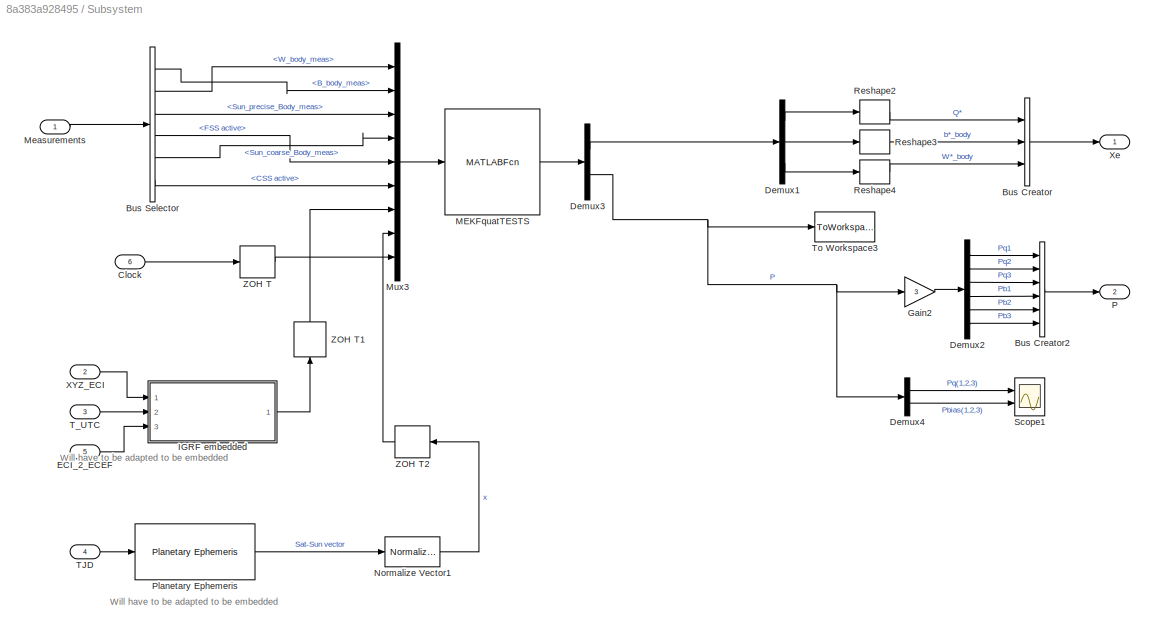
BLOCK [SubSystem] Subsystem
  Ports = [6, 2]
  RequestExecContextInheritance = off
BLOCK [BusCreator] Subsystem/Bus Creator
  DisplayOption = bar
  InheritFromInputs = on
  Inputs = 3
  Ports = [3, 1]
BLOCK [BusCreator] Subsystem/Bus Creator2
  DisplayOption = bar
  InheritFromInputs = on
  Inputs = 6
  Ports = [6, 1]
BLOCK [BusSelector] Subsystem/Bus Selector
  OutputSignals = B_body_meas,W_body_meas,Sun_precise_Body_meas,FSS active,Sun_coarse_Body_meas,CSS active
  Ports = [1, 6]
BLOCK [Inport] Subsystem/Clock
  Port = 6
BLOCK [Demux] Subsystem/Demux1
  Outputs = 3
  Ports = [1, 3]
BLOCK [Demux] Subsystem/Demux2
  Outputs = 6
  Ports = [1, 6]
BLOCK [Demux] Subsystem/Demux3
  Outputs = [10;6]
  Ports = [1, 2]
BLOCK [Demux] Subsystem/Demux4
  Outputs = [3 3]
  Ports = [1, 2]
BLOCK [Inport] Subsystem/ECI_2_ECEF
  Port = 5
BLOCK [Gain] Subsystem/Gain2
  Gain = 3
BLOCK [SubSystem] Subsystem/IGRF embedded
  Ports = [3, 1]
  RequestExecContextInheritance = off
BLOCK [Inport] Subsystem/IGRF embedded/<XYZ_ECI>
BLOCK [Outport] Subsystem/IGRF embedded/B_ECI
  VectorParamsAs1DForOutWhenUnconnected = off
BLOCK [BusCreator] Subsystem/IGRF embedded/Bus Creator
  DisplayOption = bar
  InheritFromInputs = on
  Inputs = 5
  Ports = [5, 1]
BLOCK [BusSelector] Subsystem/IGRF embedded/Bus Selector4
  OutputSignals = XYZ_ECI
  Ports = [1, 1]
BLOCK [Demux] Subsystem/IGRF embedded/Demux
  Outputs = 2
  Ports = [1, 2]
BLOCK [SubSystem] Subsystem/IGRF embedded/ECI To LLA
  ErrorFcn = Stateflow.Translate.translate
  PermitHierarchicalResolution = ExplicitOnly
  Ports = [1, 3]
  RequestExecContextInheritance = off
  SFBlockType = MATLAB Function
  TreatAsAtomicUnit = on
BLOCK [Demux] Subsystem/IGRF embedded/ECI To LLA/ Demux 
  Outputs = 1
  Ports = [1, 1]
BLOCK [S-Function] Subsystem/IGRF embedded/ECI To LLA/ SFunction 
  EnableBusSupport = on
  FunctionName = sf_sfun
  PortCounts = [1 4]
  Ports = [1, 4]
  SFcnIsStateOwnerBlock = off
  SFunctionDeploymentMode = off
  Tag = Stateflow S-Function 4
BLOCK [Terminator] Subsystem/IGRF embedded/ECI To LLA/ Terminator 
BLOCK [Inport] Subsystem/IGRF embedded/ECI To LLA/X_ECEF
BLOCK [Outport] Subsystem/IGRF embedded/ECI To LLA/h
  VectorParamsAs1DForOutWhenUnconnected = off
BLOCK [Outport] Subsystem/IGRF embedded/ECI To LLA/lat
  Port = 2
  VectorParamsAs1DForOutWhenUnconnected = off
BLOCK [Outport] Subsystem/IGRF embedded/ECI To LLA/long
  Port = 3
  VectorParamsAs1DForOutWhenUnconnected = off
BLOCK [Inport] Subsystem/IGRF embedded/ECI_2_ECEF
  Port = 3
BLOCK [SubSystem] Subsystem/IGRF embedded/Obtain B_ECI
  Ports = [1, 1]
  RequestExecContextInheritance = off
BLOCK [SubSystem] Subsystem/IGRF embedded/Obtain B_ECI/Dipole Subsystem
  Ports = [1, 1, 0, 0, 0, 0, 0, 1]
  RequestExecContextInheritance = off
  TreatAsAtomicUnit = on
BLOCK [ActionPort] Subsystem/IGRF embedded/Obtain B_ECI/Dipole Subsystem/Action Port
  ActionPortLabel = else
BLOCK [BusSelector] Subsystem/IGRF embedded/Obtain B_ECI/Dipole Subsystem/Bus Selector1
  OutputSignals = h,lat,long,DCM
  Ports = [1, 4]
BLOCK [Reference] Subsystem/IGRF embedded/Obtain B_ECI/Dipole Subsystem/Dipole Model  REF=DipoleModel/Dipole Model
  Ports = [4, 1]
  SourceBlock = DipoleModel/Dipole Model
  SourceType = SubSystem
BLOCK [Inport] Subsystem/IGRF embedded/Obtain B_ECI/Dipole Subsystem/In1
BLOCK [Outport] Subsystem/IGRF embedded/Obtain B_ECI/Dipole Subsystem/Out1
  VectorParamsAs1DForOutWhenUnconnected = off
BLOCK [SubSystem] Subsystem/IGRF embedded/Obtain B_ECI/IGRF Subsystem
  Ports = [1, 1, 0, 0, 0, 0, 0, 1]
  RequestExecContextInheritance = off
  TreatAsAtomicUnit = on
BLOCK [ActionPort] Subsystem/IGRF embedded/Obtain B_ECI/IGRF Subsystem/Action Port
  ActionPortLabel = if(u1 > 0)
BLOCK [BusSelector] Subsystem/IGRF embedded/Obtain B_ECI/IGRF Subsystem/Bus Selector
  OutputSignals = DCM,h,lat,long,signal4
  Ports = [1, 5]
BLOCK [Inport] Subsystem/IGRF embedded/Obtain B_ECI/IGRF Subsystem/In1
BLOCK [Reference] Subsystem/IGRF embedded/Obtain B_ECI/IGRF Subsystem/International Geomagnetic Reference Field 12  REF=aerolibobsolete/International Geomagnetic Reference Field 12
  Ports = [4, 10]
  SourceBlock = aerolibobsolete/International Geomagnetic Reference Field 12
  SourceProductBaseCode = AE
  SourceType = InternationalGeomagneticReferenceField12
BLOCK [Gain] Subsystem/IGRF embedded/Obtain B_ECI/IGRF Subsystem/Multiply
  Gain = 1E-9
BLOCK [Outport] Subsystem/IGRF embedded/Obtain B_ECI/IGRF Subsystem/Out1
  VectorParamsAs1DForOutWhenUnconnected = off
BLOCK [PermuteDimensions] Subsystem/IGRF embedded/Obtain B_ECI/IGRF Subsystem/Permute Dimensions
BLOCK [Product] Subsystem/IGRF embedded/Obtain B_ECI/IGRF Subsystem/Product
  Multiplication = Matrix(*)
  Ports = [2, 1]
BLOCK [Terminator] Subsystem/IGRF embedded/Obtain B_ECI/IGRF Subsystem/Terminator1
BLOCK [Terminator] Subsystem/IGRF embedded/Obtain B_ECI/IGRF Subsystem/Terminator2
BLOCK [Terminator] Subsystem/IGRF embedded/Obtain B_ECI/IGRF Subsystem/Terminator3
BLOCK [Terminator] Subsystem/IGRF embedded/Obtain B_ECI/IGRF Subsystem/Terminator4
BLOCK [Terminator] Subsystem/IGRF embedded/Obtain B_ECI/IGRF Subsystem/Terminator5
BLOCK [Terminator] Subsystem/IGRF embedded/Obtain B_ECI/IGRF Subsystem/Terminator6
BLOCK [Terminator] Subsystem/IGRF embedded/Obtain B_ECI/IGRF Subsystem/Terminator7
BLOCK [Terminator] Subsystem/IGRF embedded/Obtain B_ECI/IGRF Subsystem/Terminator8
BLOCK [Terminator] Subsystem/IGRF embedded/Obtain B_ECI/IGRF Subsystem/Terminator9
BLOCK [If] Subsystem/IGRF embedded/Obtain B_ECI/If
  Ports = [1, 2]
BLOCK [Inport] Subsystem/IGRF embedded/Obtain B_ECI/In1
BLOCK [Merge] Subsystem/IGRF embedded/Obtain B_ECI/Merge
  Ports = [2, 1]
BLOCK [Outport] Subsystem/IGRF embedded/Obtain B_ECI/Out1
  VectorParamsAs1DForOutWhenUnconnected = off
BLOCK [Constant] Subsystem/IGRF embedded/Obtain B_ECI/Use_IGRF
  Value = Use_IGRF_KF
BLOCK [Product] Subsystem/IGRF embedded/Product
  Multiplication = Matrix(*)
  Ports = [2, 1]
BLOCK [Reshape] Subsystem/IGRF embedded/Reshape
  OutputDimensionality = Row vector (2-D)
  Ports = [1, 1]
BLOCK [Terminator] Subsystem/IGRF embedded/Terminator
BLOCK [Inport] Subsystem/IGRF embedded/Time_UTC 
  Port = 2
BLOCK [MATLABFcn] Subsystem/MEKFquatTESTS
  MATLABFcn = MEKFquaternion
  Ports = [1, 1]
BLOCK [Inport] Subsystem/Measurements
BLOCK [Mux] Subsystem/Mux3
  DisplayOption = bar
  Inputs = 9
  Ports = [9, 1]
BLOCK [Reference] Subsystem/Normalize Vector1  REF=vrlib/Utilities/Normalize Vector
  Ports = [1, 1]
  SourceBlock = vrlib/Utilities/Normalize Vector
  SourceProductBaseCode = SL
  SourceType = Normalize Vector
BLOCK [Outport] Subsystem/P
  Port = 2
BLOCK [Reference] Subsystem/Planetary Ephemeris  REF=aerolibcelestial/Planetary Ephemeris
  Ports = [1, 1]
  SourceBlock = aerolibcelestial/Planetary Ephemeris
  SourceProductBaseCode = AE
  SourceType = PlanetaryEphemeris
BLOCK [Reshape] Subsystem/Reshape2
  OutputDimensionality = Customize
  OutputDimensions = [4]
  Ports = [1, 1]
BLOCK [Reshape] Subsystem/Reshape3
  OutputDimensionality = Customize
  OutputDimensions = [3]
  Ports = [1, 1]
BLOCK [Reshape] Subsystem/Reshape4
  OutputDimensionality = Customize
  OutputDimensions = [3]
  Ports = [1, 1]
BLOCK [Scope] Subsystem/Scope1
  Floating = off
  NumInputPorts = 2
  Ports = [2]
  ScopeSpecificationString = Simulink.scopes.TimeScopeBlockCfg('CurrentConfiguration', extmgr.ConfigurationSet(extmgr.Configuration('Core','General UI',true),extmgr.Configuration('Core','Source UI',true),extmgr.Configuration('Sources','WiredSimulink',true,'DataLoggingVariableName','ScopeData1','DataLoggingSaveFormat','Array','DataLoggingDecimation','1'),extmgr.Configuration('Visuals','Time Domain',true,'SerializedDisplays',{s...<+2541ch>
BLOCK [Inport] Subsystem/TJD
  Port = 4
BLOCK [Inport] Subsystem/T_UTC
  Port = 3
BLOCK [ToWorkspace] Subsystem/To Workspace3
  FixptAsFi = on
  MaxDataPoints = inf
  Ports = [1]
  SampleTime = -1
  SaveFormat = Timeseries
  VariableName = Pcor
BLOCK [Inport] Subsystem/XYZ_ECI
  Port = 2
BLOCK [Outport] Subsystem/Xe
  VectorParamsAs1DForOutWhenUnconnected = off
BLOCK [ZeroOrderHold] Subsystem/ZOH T
  SampleTime = Ts
BLOCK [ZeroOrderHold] Subsystem/ZOH T1
  NameLocation = right
  SampleTime = Ts
BLOCK [ZeroOrderHold] Subsystem/ZOH T2
  NameLocation = top
  SampleTime = Ts
BLOCK [Sum] Sum
  IconShape = rectangular
  Inputs = +-
  Ports = [2, 1]
BLOCK [Sum] Sum1
  Inputs = |+-
  Ports = [2, 1]
BLOCK [Reference] Sun position  REF=aerolibcelestial/Planetary Ephemeris
  Ports = [1, 1]
  SourceBlock = aerolibcelestial/Planetary Ephemeris
  SourceProductBaseCode = AE
  SourceType = PlanetaryEphemeris
BLOCK [Terminator] Terminator
BLOCK [SubSystem] Time propagator
  Ports = [0, 3]
  RequestExecContextInheritance = off
BLOCK [Sum] Time propagator/Add
  Inputs = |++
  Ports = [2, 1]
BLOCK [Outport] Time propagator/Clk
  Port = 3
BLOCK [Clock] Time propagator/Clock
BLOCK [Constant] Time propagator/Constant
  Value = 86400
BLOCK [Constant] Time propagator/Day
  Value = date.day
BLOCK [Product] Time propagator/Divide
  Inputs = */
  Ports = [2, 1]
BLOCK [Constant] Time propagator/HH
  Value = date.hours
BLOCK [SubSystem] Time propagator/JD to UTC
  ErrorFcn = Stateflow.Translate.translate
  PermitHierarchicalResolution = ExplicitOnly
  Ports = [1, 1]
  RequestExecContextInheritance = off
  SFBlockType = MATLAB Function
  TreatAsAtomicUnit = on
BLOCK [Demux] Time propagator/JD to UTC/ Demux 
  Outputs = 1
  Ports = [1, 1]
BLOCK [S-Function] Time propagator/JD to UTC/ SFunction 
  EnableBusSupport = on
  FunctionName = sf_sfun
  PortCounts = [1 2]
  Ports = [1, 2]
  SFcnIsStateOwnerBlock = off
  SFunctionDeploymentMode = off
  Tag = Stateflow S-Function 1
BLOCK [Terminator] Time propagator/JD to UTC/ Terminator 
BLOCK [Inport] Time propagator/JD to UTC/JD
BLOCK [Outport] Time propagator/JD to UTC/Time_UTC
  VectorParamsAs1DForOutWhenUnconnected = off
BLOCK [Constant] Time propagator/MM
  Value = date.minutes
BLOCK [Constant] Time propagator/Month
  Value = date.month
BLOCK [Mux] Time propagator/Mux
  DisplayOption = bar
  Inputs = 6
  Ports = [6, 1]
BLOCK [Reshape] Time propagator/Reshape
  Ports = [1, 1]
BLOCK [Constant] Time propagator/SS
  Value = date.seconds
BLOCK [ToWorkspace] Time propagator/Signal logging
  FixptAsFi = on
  MaxDataPoints = inf
  Ports = [1]
  SampleTime = 1
  Save2DSignal = 2-D array (concatenate along first dimension)
  SaveFormat = Timeseries
  VariableName = T_UTC
BLOCK [ToWorkspace] Time propagator/Signal logging1
  FixptAsFi = on
  MaxDataPoints = inf
  Ports = [1]
  SampleTime = 1
  Save2DSignal = 2-D array (concatenate along first dimension)
  SaveFormat = Timeseries
  VariableName = T_JD
BLOCK [Outport] Time propagator/T_JD
  Port = 2
  VectorParamsAs1DForOutWhenUnconnected = off
BLOCK [Outport] Time propagator/T_UTC
  VectorParamsAs1DForOutWhenUnconnected = off
BLOCK [SubSystem] Time propagator/UTC to JD
  ErrorFcn = Stateflow.Translate.translate
  PermitHierarchicalResolution = ExplicitOnly
  Ports = [1, 1]
  RequestExecContextInheritance = off
  SFBlockType = MATLAB Function
  TreatAsAtomicUnit = on
BLOCK [Demux] Time propagator/UTC to JD/ Demux 
  Outputs = 1
  Ports = [1, 1]
BLOCK [S-Function] Time propagator/UTC to JD/ SFunction 
  EnableBusSupport = on
  FunctionName = sf_sfun
  PortCounts = [1 2]
  Ports = [1, 2]
  SFcnIsStateOwnerBlock = off
  SFunctionDeploymentMode = off
  Tag = Stateflow S-Function 2
BLOCK [Terminator] Time propagator/UTC to JD/ Terminator 
BLOCK [Outport] Time propagator/UTC to JD/JD
  VectorParamsAs1DForOutWhenUnconnected = off
BLOCK [Inport] Time propagator/UTC to JD/Time_UTC
BLOCK [Constant] Time propagator/Year
  Value = date.year
BLOCK [ToWorkspace] To Workspace
  FixptAsFi = on
  MaxDataPoints = inf
  Ports = [1]
  SampleTime = -1
  SaveFormat = Timeseries
  VariableName = Q_est
BLOCK [ToWorkspace] To Workspace1
  FixptAsFi = on
  MaxDataPoints = inf
  Ports = [1]
  SampleTime = -1
  SaveFormat = Timeseries
  VariableName = W_est
BLOCK [ToWorkspace] To Workspace2
  FixptAsFi = on
  MaxDataPoints = inf
  Ports = [1]
  SampleTime = -1
  SaveFormat = Timeseries
  VariableName = Quat_error
BLOCK [ToWorkspace] To Workspace3
  FixptAsFi = on
  MaxDataPoints = inf
  Ports = [1]
  SampleTime = -1
  SaveFormat = Timeseries
  VariableName = b_est
BLOCK [ToWorkspace] To Workspace4
  FixptAsFi = on
  MaxDataPoints = inf
  Ports = [1]
  SampleTime = -1
  Save2DSignal = 2-D array (concatenate along first dimension)
  SaveFormat = Timeseries
  VariableName = gyro_bias
BLOCK [ToWorkspace] To Workspace5
  FixptAsFi = on
  MaxDataPoints = inf
  Ports = [1]
  SampleTime = -1
  SaveFormat = Timeseries
  VariableName = FSS
BLOCK [ToWorkspace] To Workspace6
  FixptAsFi = on
  MaxDataPoints = inf
  Ports = [1]
  SampleTime = -1
  SaveFormat = Timeseries
  VariableName = CSS
ANNOTATION (root): Kalman Viewer
ANNOTATION (root): Signal logging
ANNOTATION (root): Viewer
ANNOTATION Orbit propagator/Spherical Harmonic Gravity: Slower subsytem because it's too slow
ANNOTATION Reference: caution, in the B-dot mode we return the quaternion 0 and command directly the magnetotorquers
ANNOTATION Reference: modes : 1: Nadir 2: Sun-aero 3: Sun-sun 4: Drag 5: Retrograde 6: B-dot 7: Custom Default: nadir
ANNOTATION Reference: Runs as 1Hz
ANNOTATION Reference: q_ref = q_from i to body assuming perfect attitude control
ANNOTATION Reference/Switch Case Action Subsystem2: DCM from Inertial to Orbital
ANNOTATION Reference/Switch Case Action Subsystem2: DCM from Orbital to Inertial
ANNOTATION Reference/Switch Case Action Subsystem2: q from I to O + rotation
ANNOTATION Reference/q_orbital: To get angular velocity from Rotation matrix: https://en.wikipedia.org/wiki/Angular_velocity#Angular_velocity_tensor W= dA/dt * A'
ANNOTATION Reference/q_orbital: DCM from Orbital to Inertial
ANNOTATION Reference/q_orbital: q from I to O
ANNOTATION Reference/q_orbital: q from O to I
ANNOTATION Reference/q_retrograde: choix : x selon V z tel que z.GS soit maximisé
ANNOTATION Reference/q_retrograde: DCM from Retro to Inertial
ANNOTATION Reference/q_retrograde: q from I to R
ANNOTATION Reference/q_retrograde: q from R to I
ANNOTATION Reference/q_sun_aero: choix : x selon V z tel que z.GS soit maximisé
ANNOTATION Reference/q_sun_aero: DCM from Sun-aero to Inertial
ANNOTATION Reference/q_sun_aero: q from I to S
ANNOTATION Reference/q_sun_aero: q from S to I
ANNOTATION Reference/q_sun_sun: Choix: z selon GS x tel que x.V soit maximisé
ANNOTATION Reference/q_sun_sun: DCM from Sun-sun to Inertial
ANNOTATION Reference/q_sun_sun: q from I to SS
ANNOTATION Reference/q_sun_sun: q from SS to I
ANNOTATION Sensors/MEMS Gyro: Voir ICD sur le CubeControl (pas 100% sur néanmoins)
ANNOTATION Sensors/Magnetometer: Valeur constructeur : 1-sigma = 50nT
ANNOTATION Sensors/Sun Sensor (Coarse): Test d'eclipse
ANNOTATION Sensors/Sun Sensor (Coarse): Test d'eclipse (true = soleil visible)
ANNOTATION Sensors/Sun Sensor (Coarse): Tests if we are not in eclipse
ANNOTATION Sensors/Sun Sensor (Coarse): Two sensors because the top-camera has a 3-sigma=0.2° wheread the coarse sun sensors have sigma = 10°
ANNOTATION Sensors/Sun Sensor (Fine): Test d'eclipse
ANNOTATION Sensors/Sun Sensor (Fine): Tests if the camera is seeing the sun
ANNOTATION Sensors/Sun Sensor (Fine): Two sensors because the top-camera has a 3-sigma=0.2° wheread the coarse sun sensors have sigma = 10°
ANNOTATION Sensors/Sun Sensor (Fine): Valeur constructeur : 3-sigma = 0.2° Donc sigma = 0.066° = 0.001164 rad
ANNOTATION Subsystem: Will have to be adapted to be embedded
NET Angle Conversion1:1 -> Angle comparison ref vs est:1, Ref. Attitude:1
LINE Angle Conversion2:1 -> Angle comparison ref vs est:2
LINE Angle Conversion:1 -> Est. Attitude error:1
LINE Angular Velocity Conversion2:1 -> Angle rate estimation error:1
LINE Angular Velocity Conversion3:1 -> Ref. Attitude:2
LINE Angular Velocity Conversion:1 -> Est. Attitude error:2
NET Bus Creator1:1 -> Goto9:1, Sensors:3
LINE Bus Creator:1 -> Bus Selector6:1
LINE Bus Selector10:1 -> Quaternion Multiplication2:1
NET Bus Selector11:1 -> Quaternion Inverse2:1, To Workspace:1
LINE Bus Selector11:2 -> To Workspace3:1
LINE Bus Selector11:3 -> To Workspace1:1
LINE Bus Selector1:1 -> Angle estimation error:2
LINE Bus Selector1:2 -> Angle estimation error:3
NET Bus Selector2:1 -> Quaternion Multiplication1:2, Quaternions:2
NET Bus Selector2:2 -> Angle Rate:2, Sum:2
LINE Bus Selector3:1 -> Goto5:1
LINE Bus Selector4:1 -> Subsystem:2
LINE Bus Selector5:1 -> To Workspace5:1
LINE Bus Selector5:2 -> To Workspace6:1
LINE Bus Selector6:1 -> To Workspace4:1
LINE Bus Selector7:1 -> Quaternions to Rotation Angles2:1
LINE Bus Selector8:1 -> Quaternion Inverse:1
NET Bus Selector8:2 -> Angular velocity est error:1, Sum1:1
NET Bus Selector9:1 -> Quaternion Inverse1:1, Quaternions:1
NET Bus Selector9:2 -> Angle Rate:1, Sum:1
LINE Bus Selector:1 -> Mux:2
LINE Bus Selector:2 -> Mux2:2
LINE Bus Selector:3 -> Mux1:3
LINE From10:1 -> Signal Logging:2
LINE From11:1 -> Subsystem:4
LINE From12:1 -> Subsystem:1
LINE From13:1 -> Subsystem:5
LINE From14:1 -> Bus Creator:1
LINE From15:1 -> Bus Selector4:1
LINE From16:1 -> Bus Selector5:1
LINE From17:1 -> Bus Selector9:1
LINE From18:1 -> Bus Selector2:1
NET From19:1 -> Angular velocity est error:2, Sum1:2
LINE From1:1 -> Bus Creator1:4
LINE From20:1 -> Quaternions to Rotation Angles1:1
LINE From21:1 -> Bus Selector8:1
LINE From22:1 -> Angular Velocity Conversion3:1
LINE From23:1 -> Bus Selector7:1
LINE From24:1 -> Bus Selector11:1
LINE From27:1 -> Bus Selector10:1
LINE From28:1 -> Quaternion Multiplication:2
LINE From29:1 -> Quaternions1:1
LINE From2:1 -> Sensors:1
LINE From3:1 -> Sensors:2
LINE From4:1 -> Bus Selector1:1
LINE From5:1 -> Gain:1
LINE From6:1 -> Mux:1
LINE From7:1 -> Mux1:1
LINE From8:1 -> Signal Logging:1
LINE From9:1 -> Subsystem:3
LINE From:1 -> Bus Creator1:3
LINE Gain1:1 -> Angle rate estimation error:3
NET Gain:1 -> Angle rate estimation error:2, Gain1:1
LINE IGRF Computation block/<XYZ_ECI>:1 -> IGRF Computation block/Reshape:1
LINE IGRF Computation block/Bus Creator:1 -> IGRF Computation block/Obtain B_ECI:1
NET IGRF Computation block/DCM_i2e :1 -> IGRF Computation block/Bus Creator:5, IGRF Computation block/Product:2
LINE IGRF Computation block/Demux:1 -> IGRF Computation block/Bus Creator:4
LINE IGRF Computation block/Demux:2 -> IGRF Computation block/Terminator:1
LINE IGRF Computation block/ECI To LLA:1 -> IGRF Computation block/Bus Creator:1
LINE IGRF Computation block/ECI To LLA:2 -> IGRF Computation block/Bus Creator:2
LINE IGRF Computation block/ECI To LLA:3 -> IGRF Computation block/Bus Creator:3
LINE IGRF Computation block/Obtain B_ECI/Dipole Subsystem/Bus Selector1:1 -> IGRF Computation block/Obtain B_ECI/Dipole Subsystem/Dipole Model:1
LINE IGRF Computation block/Obtain B_ECI/Dipole Subsystem/Bus Selector1:2 -> IGRF Computation block/Obtain B_ECI/Dipole Subsystem/Dipole Model:2
LINE IGRF Computation block/Obtain B_ECI/Dipole Subsystem/Bus Selector1:3 -> IGRF Computation block/Obtain B_ECI/Dipole Subsystem/Dipole Model:3
LINE IGRF Computation block/Obtain B_ECI/Dipole Subsystem/Bus Selector1:4 -> IGRF Computation block/Obtain B_ECI/Dipole Subsystem/Dipole Model:4
LINE IGRF Computation block/Obtain B_ECI/Dipole Subsystem/Dipole Model:1 -> IGRF Computation block/Obtain B_ECI/Dipole Subsystem/B_ECI :1
LINE IGRF Computation block/Obtain B_ECI/Dipole Subsystem/In1:1 -> IGRF Computation block/Obtain B_ECI/Dipole Subsystem/Bus Selector1:1
LINE IGRF Computation block/Obtain B_ECI/Dipole Subsystem:1 -> IGRF Computation block/Obtain B_ECI/Merge:2
LINE IGRF Computation block/Obtain B_ECI/IGRF Subsystem/Bus Selector:1 -> IGRF Computation block/Obtain B_ECI/IGRF Subsystem/Permute Dimensions:1
LINE IGRF Computation block/Obtain B_ECI/IGRF Subsystem/Bus Selector:2 -> IGRF Computation block/Obtain B_ECI/IGRF Subsystem/International Geomagnetic Reference Field 12:1
NET IGRF Computation block/Obtain B_ECI/IGRF Subsystem/Bus Selector:3 -> IGRF Computation block/Obtain B_ECI/IGRF Subsystem/International Geomagnetic Reference Field 12:2, IGRF Computation block/Obtain B_ECI/IGRF Subsystem/Mux:2
NET IGRF Computation block/Obtain B_ECI/IGRF Subsystem/Bus Selector:4 -> IGRF Computation block/Obtain B_ECI/IGRF Subsystem/International Geomagnetic Reference Field 12:3, IGRF Computation block/Obtain B_ECI/IGRF Subsystem/Mux:3
LINE IGRF Computation block/Obtain B_ECI/IGRF Subsystem/Bus Selector:5 -> IGRF Computation block/Obtain B_ECI/IGRF Subsystem/International Geomagnetic Reference Field 12:4
LINE IGRF Computation block/Obtain B_ECI/IGRF Subsystem/In1:1 -> IGRF Computation block/Obtain B_ECI/IGRF Subsystem/Bus Selector:1
LINE IGRF Computation block/Obtain B_ECI/IGRF Subsystem/International Geomagnetic Reference Field 12:1 -> IGRF Computation block/Obtain B_ECI/IGRF Subsystem/Mux:1
LINE IGRF Computation block/Obtain B_ECI/IGRF Subsystem/International Geomagnetic Reference Field 12:10 -> IGRF Computation block/Obtain B_ECI/IGRF Subsystem/Terminator9:1
LINE IGRF Computation block/Obtain B_ECI/IGRF Subsystem/International Geomagnetic Reference Field 12:2 -> IGRF Computation block/Obtain B_ECI/IGRF Subsystem/Terminator1:1
LINE IGRF Computation block/Obtain B_ECI/IGRF Subsystem/International Geomagnetic Reference Field 12:3 -> IGRF Computation block/Obtain B_ECI/IGRF Subsystem/Terminator2:1
LINE IGRF Computation block/Obtain B_ECI/IGRF Subsystem/International Geomagnetic Reference Field 12:4 -> IGRF Computation block/Obtain B_ECI/IGRF Subsystem/Terminator3:1
LINE IGRF Computation block/Obtain B_ECI/IGRF Subsystem/International Geomagnetic Reference Field 12:5 -> IGRF Computation block/Obtain B_ECI/IGRF Subsystem/Terminator4:1
LINE IGRF Computation block/Obtain B_ECI/IGRF Subsystem/International Geomagnetic Reference Field 12:6 -> IGRF Computation block/Obtain B_ECI/IGRF Subsystem/Terminator5:1
LINE IGRF Computation block/Obtain B_ECI/IGRF Subsystem/International Geomagnetic Reference Field 12:7 -> IGRF Computation block/Obtain B_ECI/IGRF Subsystem/Terminator6:1
LINE IGRF Computation block/Obtain B_ECI/IGRF Subsystem/International Geomagnetic Reference Field 12:8 -> IGRF Computation block/Obtain B_ECI/IGRF Subsystem/Terminator7:1
LINE IGRF Computation block/Obtain B_ECI/IGRF Subsystem/International Geomagnetic Reference Field 12:9 -> IGRF Computation block/Obtain B_ECI/IGRF Subsystem/Terminator8:1
LINE IGRF Computation block/Obtain B_ECI/IGRF Subsystem/Mux:1 -> IGRF Computation block/Obtain B_ECI/IGRF Subsystem/NED to ECEF:1
LINE IGRF Computation block/Obtain B_ECI/IGRF Subsystem/NED to ECEF:1 -> IGRF Computation block/Obtain B_ECI/IGRF Subsystem/Product:2
LINE IGRF Computation block/Obtain B_ECI/IGRF Subsystem/Permute Dimensions:1 -> IGRF Computation block/Obtain B_ECI/IGRF Subsystem/Product:1
LINE IGRF Computation block/Obtain B_ECI/IGRF Subsystem/Product:1 -> IGRF Computation block/Obtain B_ECI/IGRF Subsystem/T to nT:1
LINE IGRF Computation block/Obtain B_ECI/IGRF Subsystem/T to nT:1 -> IGRF Computation block/Obtain B_ECI/IGRF Subsystem/Out1:1
LINE IGRF Computation block/Obtain B_ECI/IGRF Subsystem:1 -> IGRF Computation block/Obtain B_ECI/Merge:1
LINE IGRF Computation block/Obtain B_ECI/If:1 -> IGRF Computation block/Obtain B_ECI/IGRF Subsystem:ifaction
LINE IGRF Computation block/Obtain B_ECI/If:2 -> IGRF Computation block/Obtain B_ECI/Dipole Subsystem:ifaction
NET IGRF Computation block/Obtain B_ECI/In1:1 -> IGRF Computation block/Obtain B_ECI/Dipole Subsystem:1, IGRF Computation block/Obtain B_ECI/IGRF Subsystem:1
LINE IGRF Computation block/Obtain B_ECI/Merge:1 -> IGRF Computation block/Obtain B_ECI/Out1:1
LINE IGRF Computation block/Obtain B_ECI/Use_IGRF:1 -> IGRF Computation block/Obtain B_ECI/If:1
LINE IGRF Computation block/Obtain B_ECI:1 -> IGRF Computation block/B_ECI:1
LINE IGRF Computation block/Product:1 -> IGRF Computation block/ECI To LLA:1
LINE IGRF Computation block/Reshape:1 -> IGRF Computation block/Product:1
LINE IGRF Computation block/Time_UTC :1 -> IGRF Computation block/Demux:1
LINE IGRF Computation block:1 -> Goto2:1
LINE Initialize Function/Angle Conversion2:1 -> Initialize Function/orb2rv:3
LINE Initialize Function/Angle Conversion3:1 -> Initialize Function/orb2rv:4
LINE Initialize Function/Angle Conversion4:1 -> Initialize Function/orb2rv:5
LINE Initialize Function/Angle Conversion5:1 -> Initialize Function/orb2rv:6
NET Initialize Function/Ground:1 -> Initialize Function/orb2rv:7, Initialize Function/orb2rv:8, Initialize Function/orb2rv:9
LINE Initialize Function/Length Conversion:1 -> Initialize Function/State Writer:1
LINE Initialize Function/O:1 -> Initialize Function/Angle Conversion3:1
LINE Initialize Function/Reshape2:1 -> Initialize Function/Velocity Conversion:1
LINE Initialize Function/Reshape3:1 -> Initialize Function/Length Conversion:1
LINE Initialize Function/Velocity Conversion:1 -> Initialize Function/State Writer1:1
LINE Initialize Function/a:1 -> Initialize Function/orb2rv:1
LINE Initialize Function/e:1 -> Initialize Function/orb2rv:2
LINE Initialize Function/i:1 -> Initialize Function/Angle Conversion2:1
LINE Initialize Function/nu:1 -> Initialize Function/Angle Conversion5:1
LINE Initialize Function/o:1 -> Initialize Function/Angle Conversion4:1
LINE Initialize Function/orb2rv:1 -> Initialize Function/Reshape3:1
LINE Initialize Function/orb2rv:2 -> Initialize Function/Reshape2:1
LINE Mode:1 -> Reference:1
LINE Mux1:1 -> Scope:2
LINE Mux2:1 -> Scope:3
LINE Mux:1 -> Scope:1
NET Normalize Vector:1 -> Goto3:1, Reference:4
LINE Orbit propagator/1//m:1 -> Orbit propagator/Integrator_speed:1
NET Orbit propagator/Integrator_pos:1 -> Orbit propagator/Reshape2:1, Orbit propagator/XYZ_ECI:1
NET Orbit propagator/Integrator_speed:1 -> Orbit propagator/Integrator_pos:1, Orbit propagator/VxVyVz_ECI:1
LINE Orbit propagator/Reshape2:1 -> Orbit propagator/Spherical Harmonic Gravity:1
LINE Orbit propagator/Reshape:1 -> Orbit propagator/1//m:1
NET Orbit propagator/Spherical Harmonic Gravity/ECI_2_ECEF:1 -> Orbit propagator/Spherical Harmonic Gravity/DCM_ECI2ECEF:1, Orbit propagator/Spherical Harmonic Gravity/Product1:1, Orbit propagator/Spherical Harmonic Gravity/Product:1
LINE Orbit propagator/Spherical Harmonic Gravity/Product1:1 -> Orbit propagator/Spherical Harmonic Gravity/g_ECI (m//s²):1
LINE Orbit propagator/Spherical Harmonic Gravity/Product:1 -> Orbit propagator/Spherical Harmonic Gravity/Spherical Harmonic Gravity Model:1
LINE Orbit propagator/Spherical Harmonic Gravity/Spherical Harmonic Gravity Model:1 -> Orbit propagator/Spherical Harmonic Gravity/Transpose:1
LINE Orbit propagator/Spherical Harmonic Gravity/Time_UTC:1 -> Orbit propagator/Spherical Harmonic Gravity/ECI_2_ECEF:1
LINE Orbit propagator/Spherical Harmonic Gravity/Transpose:1 -> Orbit propagator/Spherical Harmonic Gravity/Product1:2
LINE Orbit propagator/Spherical Harmonic Gravity/XYZ_ECI:1 -> Orbit propagator/Spherical Harmonic Gravity/Product:2
LINE Orbit propagator/Spherical Harmonic Gravity:1 -> Orbit propagator/m:1
LINE Orbit propagator/Spherical Harmonic Gravity:2 -> Orbit propagator/DCM_ECI2ECEF:1
LINE Orbit propagator/Time_UTC :1 -> Orbit propagator/Spherical Harmonic Gravity:2
LINE Orbit propagator/m:1 -> Orbit propagator/Reshape:1
NET Orbit propagator:1 -> IGRF Computation block:1, Reshape:1
LINE Orbit propagator:2 -> Reshape1:1
NET Orbit propagator:3 -> Goto10:1, IGRF Computation block:2
LINE QuatToAngleDeg/Abs1:1 -> QuatToAngleDeg/Acos:1
LINE QuatToAngleDeg/Abs:1 -> QuatToAngleDeg/angle deg:1
LINE QuatToAngleDeg/Acos:1 -> QuatToAngleDeg/Gain:1
LINE QuatToAngleDeg/Angle Conversion1:1 -> QuatToAngleDeg/Abs:1
NET QuatToAngleDeg/Demux1:1 -> QuatToAngleDeg/Abs1:1, QuatToAngleDeg/Scope:1
LINE QuatToAngleDeg/Demux1:2 -> QuatToAngleDeg/Terminator2:1
LINE QuatToAngleDeg/Demux1:3 -> QuatToAngleDeg/Terminator3:1
LINE QuatToAngleDeg/Demux1:4 -> QuatToAngleDeg/Terminator1:1
LINE QuatToAngleDeg/Gain:1 -> QuatToAngleDeg/Angle Conversion1:1
LINE QuatToAngleDeg/In1:1 -> QuatToAngleDeg/Demux1:1
LINE QuatToAngleDeg1/Abs:1 -> QuatToAngleDeg1/angle deg:1
LINE QuatToAngleDeg1/Angle Conversion1:1 -> QuatToAngleDeg1/Abs:1
LINE QuatToAngleDeg1/Demux1:1 -> QuatToAngleDeg1/Terminator1:1
LINE QuatToAngleDeg1/Demux1:2 -> QuatToAngleDeg1/Terminator2:1
LINE QuatToAngleDeg1/Demux1:3 -> QuatToAngleDeg1/Terminator3:1
LINE QuatToAngleDeg1/Demux1:4 -> QuatToAngleDeg1/Angle Conversion1:1
LINE QuatToAngleDeg1/In1:1 -> QuatToAngleDeg1/Quaternion to axis and angle conversion:1
LINE QuatToAngleDeg1/Quaternion to axis and angle conversion:1 -> QuatToAngleDeg1/Demux1:1
LINE QuatToAngleDeg1:1 -> Est. Angle error:1
LINE QuatToAngleDeg:1 -> Angle estimation error:1
LINE Quaternion Inverse1:1 -> Quaternion Multiplication1:1
LINE Quaternion Inverse2:1 -> Quaternion Multiplication2:2
NET Quaternion Inverse:1 -> Quaternion Multiplication:1, Quaternions1:2
LINE Quaternion Multiplication1:1 -> QuatToAngleDeg:1
LINE Quaternion Multiplication2:1 -> To Workspace2:1
NET Quaternion Multiplication:1 -> QuatToAngleDeg1:1, Quaternions to Rotation Angles:1
LINE Quaternions to Rotation Angles1:1 -> Angle Conversion1:1
LINE Quaternions to Rotation Angles2:1 -> Angle Conversion2:1
LINE Quaternions to Rotation Angles:1 -> Angle Conversion:1
LINE Reference/Constant1:1 -> Reference/Normalize Vector:1
LINE Reference/Constant2:1 -> Reference/Switch Case Action Subsystem7:2
LINE Reference/Constant:1 -> Reference/Manual Switch:2
LINE Reference/MODE:1 -> Reference/Switch Case:1
NET Reference/Manual Switch:1 -> Reference/Switch Case Action Subsystem6:1, Reference/Switch Case Action Subsystem6:2
LINE Reference/Merge1:1 -> Reference/R_b_2_i_ref:1
LINE Reference/Merge2:1 -> Reference/W_ref:1
LINE Reference/Merge:1 -> Reference/q_ref:1
LINE Reference/Normalize Vector:1 -> Reference/Manual Switch:1
NET Reference/Quaternion Multiplication1:1 -> Reference/Switch Case Action Subsystem2:1, Reference/Switch Case Action Subsystem2:2
LINE Reference/Reshape1:1 -> Reference/Switch Case Action Subsystem7:1
NET Reference/Sun_ECI:1 -> Reference/q_retrograde:2, Reference/q_sun_aero:1, Reference/q_sun_sun:2
LINE Reference/Switch Case Action Subsystem/Q_orbit:1 -> Reference/Switch Case Action Subsystem/Out1:1
LINE Reference/Switch Case Action Subsystem/R_o_2_i:1 -> Reference/Switch Case Action Subsystem/Out2:1
LINE Reference/Switch Case Action Subsystem/W_orbit1:1 -> Reference/Switch Case Action Subsystem/Out3:1
LINE Reference/Switch Case Action Subsystem1/Q_retro:1 -> Reference/Switch Case Action Subsystem1/Out1:1
LINE Reference/Switch Case Action Subsystem1/R_r_2_i:1 -> Reference/Switch Case Action Subsystem1/Out2:1
LINE Reference/Switch Case Action Subsystem1/W_retro:1 -> Reference/Switch Case Action Subsystem1/Out3:1
LINE Reference/Switch Case Action Subsystem1:1 -> Reference/Merge:2
LINE Reference/Switch Case Action Subsystem1:2 -> Reference/Merge1:2
LINE Reference/Switch Case Action Subsystem1:3 -> Reference/Merge2:2
LINE Reference/Switch Case Action Subsystem2/Derivative:1 -> Reference/Switch Case Action Subsystem2/Matrix Multiply:1
LINE Reference/Switch Case Action Subsystem2/In1:1 -> Reference/Switch Case Action Subsystem2/Out1:1
LINE Reference/Switch Case Action Subsystem2/In2:1 -> Reference/Switch Case Action Subsystem2/Quaternions to Direction Cosine Matrix:1
LINE Reference/Switch Case Action Subsystem2/Matrix Multiply:1 -> Reference/Switch Case Action Subsystem2/gets vector from Skew Matrix:1
LINE Reference/Switch Case Action Subsystem2/Quaternions to Direction Cosine Matrix:1 -> Reference/Switch Case Action Subsystem2/Transpose1:1
NET Reference/Switch Case Action Subsystem2/Transpose1:1 -> Reference/Switch Case Action Subsystem2/Matrix Multiply:2, Reference/Switch Case Action Subsystem2/Out2:1, Reference/Switch Case Action Subsystem2/Transpose:1
LINE Reference/Switch Case Action Subsystem2/Transpose:1 -> Reference/Switch Case Action Subsystem2/Derivative:1
LINE Reference/Switch Case Action Subsystem2/gets vector from Skew Matrix:1 -> Reference/Switch Case Action Subsystem2/W_drag:1
LINE Reference/Switch Case Action Subsystem2:1 -> Reference/Merge:3
LINE Reference/Switch Case Action Subsystem2:2 -> Reference/Merge1:3
LINE Reference/Switch Case Action Subsystem2:3 -> Reference/Merge2:3
LINE Reference/Switch Case Action Subsystem3/Q_sun_sun:1 -> Reference/Switch Case Action Subsystem3/Out1:1
LINE Reference/Switch Case Action Subsystem3/R_ss_2_i:1 -> Reference/Switch Case Action Subsystem3/Out2:1
LINE Reference/Switch Case Action Subsystem3/W_sun_sun:1 -> Reference/Switch Case Action Subsystem3/Out3:1
LINE Reference/Switch Case Action Subsystem3:1 -> Reference/Merge:4
LINE Reference/Switch Case Action Subsystem3:2 -> Reference/Merge1:4
LINE Reference/Switch Case Action Subsystem3:3 -> Reference/Merge2:4
LINE Reference/Switch Case Action Subsystem4/Q_sun_aero:1 -> Reference/Switch Case Action Subsystem4/Out1:1
LINE Reference/Switch Case Action Subsystem4/R_s_2_i:1 -> Reference/Switch Case Action Subsystem4/Out2:1
LINE Reference/Switch Case Action Subsystem4/W_sun_aero:1 -> Reference/Switch Case Action Subsystem4/Out3:1
LINE Reference/Switch Case Action Subsystem4:1 -> Reference/Merge:5
LINE Reference/Switch Case Action Subsystem4:2 -> Reference/Merge1:5
LINE Reference/Switch Case Action Subsystem4:3 -> Reference/Merge2:5
LINE Reference/Switch Case Action Subsystem5/In1:1 -> Reference/Switch Case Action Subsystem5/Out1:1
LINE Reference/Switch Case Action Subsystem5/R_o_2_i:1 -> Reference/Switch Case Action Subsystem5/Out2:1
LINE Reference/Switch Case Action Subsystem5/W_orbit:1 -> Reference/Switch Case Action Subsystem5/Out3:1
LINE Reference/Switch Case Action Subsystem5:1 -> Reference/Merge:1
LINE Reference/Switch Case Action Subsystem5:2 -> Reference/Merge1:1
LINE Reference/Switch Case Action Subsystem5:3 -> Reference/Merge2:1
LINE Reference/Switch Case Action Subsystem6/Derivative:1 -> Reference/Switch Case Action Subsystem6/Matrix Multiply:1
LINE Reference/Switch Case Action Subsystem6/In1:1 -> Reference/Switch Case Action Subsystem6/Out1:1
LINE Reference/Switch Case Action Subsystem6/In2:1 -> Reference/Switch Case Action Subsystem6/Quaternions to Direction Cosine Matrix:1
LINE Reference/Switch Case Action Subsystem6/Matrix Multiply:1 -> Reference/Switch Case Action Subsystem6/gets vector from Skew Matrix:1
LINE Reference/Switch Case Action Subsystem6/Quaternions to Direction Cosine Matrix:1 -> Reference/Switch Case Action Subsystem6/Transpose1:1
NET Reference/Switch Case Action Subsystem6/Transpose1:1 -> Reference/Switch Case Action Subsystem6/Matrix Multiply:2, Reference/Switch Case Action Subsystem6/Out2:1, Reference/Switch Case Action Subsystem6/Transpose:1
LINE Reference/Switch Case Action Subsystem6/Transpose:1 -> Reference/Switch Case Action Subsystem6/Derivative:1
LINE Reference/Switch Case Action Subsystem6/gets vector from Skew Matrix:1 -> Reference/Switch Case Action Subsystem6/W_custom:1
LINE Reference/Switch Case Action Subsystem6:1 -> Reference/Merge:8
LINE Reference/Switch Case Action Subsystem6:2 -> Reference/Merge1:8
LINE Reference/Switch Case Action Subsystem6:3 -> Reference/Merge2:8
LINE Reference/Switch Case Action Subsystem7/In1:1 -> Reference/Switch Case Action Subsystem7/Out1:1
LINE Reference/Switch Case Action Subsystem7/In2:1 -> Reference/Switch Case Action Subsystem7/Out2:1
LINE Reference/Switch Case Action Subsystem7/Input1:1 -> Reference/Switch Case Action Subsystem7/Out3:1
LINE Reference/Switch Case Action Subsystem7:1 -> Reference/Merge:6
LINE Reference/Switch Case Action Subsystem7:2 -> Reference/Merge1:6
LINE Reference/Switch Case Action Subsystem7:3 -> Reference/Merge2:6
LINE Reference/Switch Case Action Subsystem:1 -> Reference/Merge:7
LINE Reference/Switch Case Action Subsystem:2 -> Reference/Merge1:7
LINE Reference/Switch Case Action Subsystem:3 -> Reference/Merge2:7
LINE Reference/Switch Case:1 -> Reference/Switch Case Action Subsystem5:ifaction
LINE Reference/Switch Case:2 -> Reference/Switch Case Action Subsystem4:ifaction
LINE Reference/Switch Case:3 -> Reference/Switch Case Action Subsystem3:ifaction
LINE Reference/Switch Case:4 -> Reference/Switch Case Action Subsystem2:ifaction
LINE Reference/Switch Case:5 -> Reference/Switch Case Action Subsystem1:ifaction
LINE Reference/Switch Case:6 -> Reference/Switch Case Action Subsystem7:ifaction
LINE Reference/Switch Case:7 -> Reference/Switch Case Action Subsystem6:ifaction
LINE Reference/Switch Case:8 -> Reference/Switch Case Action Subsystem:ifaction
NET Reference/VxVyVz_ECI:1 -> Reference/q_orbital:2, Reference/q_retrograde:1, Reference/q_rotation_y_pi//2:2, Reference/q_sun_aero:2, Reference/q_sun_sun:1
NET Reference/XYZ_ECI:1 -> Reference/q_orbital:1, Reference/q_rotation_y_pi//2:1
LINE Reference/q_orbital/3x3 Cross Product:1 -> Reference/q_orbital/Gain1:1
LINE Reference/q_orbital/<VxVyVz_ECI>:1 -> Reference/q_orbital/Normalization1:1
LINE Reference/q_orbital/<XYZ_ECI>:1 -> Reference/q_orbital/Normalization:1
LINE Reference/q_orbital/Derivative:1 -> Reference/q_orbital/Matrix Multiply:1
NET Reference/q_orbital/Direction Cosine Matrix to Quaternions:1 -> Reference/q_orbital/Quaternion Inverse:1, Reference/q_orbital/Scope:1
LINE Reference/q_orbital/Gain1:1 -> Reference/q_orbital/Reshape2:1
NET Reference/q_orbital/Gain:1 -> Reference/q_orbital/3x3 Cross Product:2, Reference/q_orbital/Vector Concatenate:3
LINE Reference/q_orbital/Matrix Multiply:1 -> Reference/q_orbital/gets vector from Skew Matrix:1
LINE Reference/q_orbital/Normalization1:1 -> Reference/q_orbital/Reshape1:1
LINE Reference/q_orbital/Normalization:1 -> Reference/q_orbital/Reshape:1
NET Reference/q_orbital/Quaternion Inverse:1 -> Reference/q_orbital/Q_orbit:1, Reference/q_orbital/Scope1:1
NET Reference/q_orbital/Reshape1:1 -> Reference/q_orbital/3x3 Cross Product:1, Reference/q_orbital/Vector Concatenate:1
LINE Reference/q_orbital/Reshape2:1 -> Reference/q_orbital/Vector Concatenate:2
NET Reference/q_orbital/Reshape3:1 -> Reference/q_orbital/Matrix Multiply:2, Reference/q_orbital/R_o_2_i:1, Reference/q_orbital/Transpose:1
LINE Reference/q_orbital/Reshape:1 -> Reference/q_orbital/Gain:1
LINE Reference/q_orbital/Transpose:1 -> Reference/q_orbital/Derivative:1
NET Reference/q_orbital/Vector Concatenate:1 -> Reference/q_orbital/Direction Cosine Matrix to Quaternions:1, Reference/q_orbital/Reshape3:1
LINE Reference/q_orbital/gets vector from Skew Matrix:1 -> Reference/q_orbital/W_orbit:1
NET Reference/q_orbital:1 -> Reference/Quaternion Multiplication1:1, Reference/Switch Case Action Subsystem5:1, Reference/Switch Case Action Subsystem:1
NET Reference/q_orbital:2 -> Reference/Switch Case Action Subsystem5:2, Reference/Switch Case Action Subsystem:2
NET Reference/q_orbital:3 -> Reference/Switch Case Action Subsystem5:3, Reference/Switch Case Action Subsystem:3
LINE Reference/q_retrograde/<VxVyVz_ECI>:1 -> Reference/q_retrograde/Normalization1:1
LINE Reference/q_retrograde/Cross Product:1 -> Reference/q_retrograde/Reshape1:1
LINE Reference/q_retrograde/Derivative:1 -> Reference/q_retrograde/Matrix Multiply:1
LINE Reference/q_retrograde/Direction Cosine Matrix to Quaternions:1 -> Reference/q_retrograde/Quaternion Inverse:1
LINE Reference/q_retrograde/Dot Product:1 -> Reference/q_retrograde/Product:2
NET Reference/q_retrograde/Gain:1 -> Reference/q_retrograde/Dot Product:1, Reference/q_retrograde/Product:1, Reference/q_retrograde/Reshape3:1
LINE Reference/q_retrograde/Matrix Multiply:1 -> Reference/q_retrograde/gets vector from Skew Matrix:1
LINE Reference/q_retrograde/Normalization1:1 -> Reference/q_retrograde/Gain:1
LINE Reference/q_retrograde/Normalization2:1 -> Reference/q_retrograde/Reshape2:1
LINE Reference/q_retrograde/Plus:1 -> Reference/q_retrograde/Normalization2:1
LINE Reference/q_retrograde/Product:1 -> Reference/q_retrograde/Plus:1
LINE Reference/q_retrograde/Quaternion Inverse:1 -> Reference/q_retrograde/Q_retro:1
LINE Reference/q_retrograde/Reshape1:1 -> Reference/q_retrograde/Vector Concatenate:2
NET Reference/q_retrograde/Reshape2:1 -> Reference/q_retrograde/Cross Product:1, Reference/q_retrograde/Vector Concatenate:3
NET Reference/q_retrograde/Reshape3:1 -> Reference/q_retrograde/Cross Product:2, Reference/q_retrograde/Vector Concatenate:1
NET Reference/q_retrograde/Reshape:1 -> Reference/q_retrograde/Matrix Multiply:2, Reference/q_retrograde/R_r_2_i:1, Reference/q_retrograde/Transpose:1
NET Reference/q_retrograde/Sun_ECI:1 -> Reference/q_retrograde/Dot Product:2, Reference/q_retrograde/Plus:2
LINE Reference/q_retrograde/Transpose:1 -> Reference/q_retrograde/Derivative:1
NET Reference/q_retrograde/Vector Concatenate:1 -> Reference/q_retrograde/Direction Cosine Matrix to Quaternions:1, Reference/q_retrograde/Reshape:1
LINE Reference/q_retrograde/gets vector from Skew Matrix:1 -> Reference/q_retrograde/W_retro:1
LINE Reference/q_retrograde:1 -> Reference/Switch Case Action Subsystem1:1
LINE Reference/q_retrograde:2 -> Reference/Switch Case Action Subsystem1:2
LINE Reference/q_retrograde:3 -> Reference/Switch Case Action Subsystem1:3
LINE Reference/q_rotation_y_pi//2/Cross Product:1 -> Reference/q_rotation_y_pi//2/Product:1
LINE Reference/q_rotation_y_pi//2/Product:1 -> Reference/q_rotation_y_pi//2/Reshape1:1
LINE Reference/q_rotation_y_pi//2/Reshape1:1 -> Reference/q_rotation_y_pi//2/Vector Concatenate1:2
LINE Reference/q_rotation_y_pi//2/V_ECI:1 -> Reference/q_rotation_y_pi//2/Cross Product:2
LINE Reference/q_rotation_y_pi//2/Vector Concatenate1:1 -> Reference/q_rotation_y_pi//2/Q_rot_drag:1
LINE Reference/q_rotation_y_pi//2/cos pi//4:1 -> Reference/q_rotation_y_pi//2/Vector Concatenate1:1
LINE Reference/q_rotation_y_pi//2/sin pi//4:1 -> Reference/q_rotation_y_pi//2/Product:2
LINE Reference/q_rotation_y_pi//2/z_ECI:1 -> Reference/q_rotation_y_pi//2/Cross Product:1
LINE Reference/q_rotation_y_pi//2:1 -> Reference/Quaternion Multiplication1:2
LINE Reference/q_sun_aero/<VxVyVz_ECI>:1 -> Reference/q_sun_aero/Normalization1:1
LINE Reference/q_sun_aero/Cross Product:1 -> Reference/q_sun_aero/Reshape1:1
LINE Reference/q_sun_aero/Derivative:1 -> Reference/q_sun_aero/Matrix Multiply:1
LINE Reference/q_sun_aero/Direction Cosine Matrix to Quaternions:1 -> Reference/q_sun_aero/Quaternion Inverse:1
LINE Reference/q_sun_aero/Dot Product:1 -> Reference/q_sun_aero/Product:2
LINE Reference/q_sun_aero/Matrix Multiply:1 -> Reference/q_sun_aero/gets vector from Skew Matrix:1
NET Reference/q_sun_aero/Normalization1:1 -> Reference/q_sun_aero/Dot Product:1, Reference/q_sun_aero/Product:1, Reference/q_sun_aero/Reshape3:1
LINE Reference/q_sun_aero/Normalization2:1 -> Reference/q_sun_aero/Reshape2:1
LINE Reference/q_sun_aero/Plus:1 -> Reference/q_sun_aero/Normalization2:1
LINE Reference/q_sun_aero/Product:1 -> Reference/q_sun_aero/Plus:1
LINE Reference/q_sun_aero/Quaternion Inverse:1 -> Reference/q_sun_aero/Q_sun_aero:1
LINE Reference/q_sun_aero/Reshape1:1 -> Reference/q_sun_aero/Vector Concatenate:2
NET Reference/q_sun_aero/Reshape2:1 -> Reference/q_sun_aero/Cross Product:1, Reference/q_sun_aero/Vector Concatenate:3
NET Reference/q_sun_aero/Reshape3:1 -> Reference/q_sun_aero/Cross Product:2, Reference/q_sun_aero/Vector Concatenate:1
NET Reference/q_sun_aero/Reshape:1 -> Reference/q_sun_aero/Matrix Multiply:2, Reference/q_sun_aero/R_s_2_i:1, Reference/q_sun_aero/Transpose:1
NET Reference/q_sun_aero/Sun_ECI:1 -> Reference/q_sun_aero/Dot Product:2, Reference/q_sun_aero/Plus:2
LINE Reference/q_sun_aero/Transpose:1 -> Reference/q_sun_aero/Derivative:1
NET Reference/q_sun_aero/Vector Concatenate:1 -> Reference/q_sun_aero/Direction Cosine Matrix to Quaternions:1, Reference/q_sun_aero/Reshape:1
LINE Reference/q_sun_aero/gets vector from Skew Matrix:1 -> Reference/q_sun_aero/W_sun_aero:1
LINE Reference/q_sun_aero:1 -> Reference/Switch Case Action Subsystem4:1
LINE Reference/q_sun_aero:2 -> Reference/Switch Case Action Subsystem4:2
LINE Reference/q_sun_aero:3 -> Reference/Switch Case Action Subsystem4:3
NET Reference/q_sun_sun/<VxVyVz_ECI>:1 -> Reference/q_sun_sun/Dot Product1:1, Reference/q_sun_sun/Plus1:1
LINE Reference/q_sun_sun/Cross Product1:1 -> Reference/q_sun_sun/Reshape4:1
LINE Reference/q_sun_sun/Derivative:1 -> Reference/q_sun_sun/Matrix Multiply:1
LINE Reference/q_sun_sun/Direction Cosine Matrix to Quaternions1:1 -> Reference/q_sun_sun/Quaternion Inverse1:1
LINE Reference/q_sun_sun/Dot Product1:1 -> Reference/q_sun_sun/Product1:1
LINE Reference/q_sun_sun/Matrix Multiply:1 -> Reference/q_sun_sun/gets vector from Skew Matrix:1
NET Reference/q_sun_sun/Normalization3:1 -> Reference/q_sun_sun/Dot Product1:2, Reference/q_sun_sun/Product1:2, Reference/q_sun_sun/Reshape6:1
LINE Reference/q_sun_sun/Normalization4:1 -> Reference/q_sun_sun/Reshape5:1
LINE Reference/q_sun_sun/Plus1:1 -> Reference/q_sun_sun/Normalization4:1
LINE Reference/q_sun_sun/Product1:1 -> Reference/q_sun_sun/Plus1:2
LINE Reference/q_sun_sun/Quaternion Inverse1:1 -> Reference/q_sun_sun/Q_sun_sun:1
LINE Reference/q_sun_sun/Reshape4:1 -> Reference/q_sun_sun/Vector Concatenate1:2
NET Reference/q_sun_sun/Reshape5:1 -> Reference/q_sun_sun/Cross Product1:2, Reference/q_sun_sun/Vector Concatenate1:1
NET Reference/q_sun_sun/Reshape6:1 -> Reference/q_sun_sun/Cross Product1:1, Reference/q_sun_sun/Vector Concatenate1:3
NET Reference/q_sun_sun/Reshape:1 -> Reference/q_sun_sun/Matrix Multiply:2, Reference/q_sun_sun/R_ss_2_i:1, Reference/q_sun_sun/Transpose:1
LINE Reference/q_sun_sun/Sun_ECI:1 -> Reference/q_sun_sun/Normalization3:1
LINE Reference/q_sun_sun/Transpose:1 -> Reference/q_sun_sun/Derivative:1
NET Reference/q_sun_sun/Vector Concatenate1:1 -> Reference/q_sun_sun/Direction Cosine Matrix to Quaternions1:1, Reference/q_sun_sun/Reshape:1
LINE Reference/q_sun_sun/gets vector from Skew Matrix:1 -> Reference/q_sun_sun/W_sun_sun:1
LINE Reference/q_sun_sun:1 -> Reference/Switch Case Action Subsystem3:1
LINE Reference/q_sun_sun:2 -> Reference/Switch Case Action Subsystem3:2
LINE Reference/q_sun_sun:3 -> Reference/Switch Case Action Subsystem3:3
LINE Reference/quaternion 0:1 -> Reference/Reshape1:1
LINE Reference/zero ang vel:1 -> Reference/Switch Case Action Subsystem7:3
LINE Reference:1 -> Goto:1
LINE Reference:2 -> Terminator:1
LINE Reference:3 -> Goto1:1
NET Reshape1:1 -> Bus Creator1:2, Reference:2
NET Reshape:1 -> Bus Creator1:1, Reference:3
LINE Sensors/B_ECI:1 -> Sensors/Magnetometer:2
LINE Sensors/Bus Creator:1 -> Sensors/Measurements:1
LINE Sensors/MEMS Gyro/Bus Selector4:1 -> Sensors/MEMS Gyro/Sum:1
LINE Sensors/MEMS Gyro/Constant1:1 -> Sensors/MEMS Gyro/Manual Switch1:2
LINE Sensors/MEMS Gyro/Ground:1 -> Sensors/MEMS Gyro/Manual Switch2:2
LINE Sensors/MEMS Gyro/Integrator1:1 -> Sensors/MEMS Gyro/Manual Switch2:1
LINE Sensors/MEMS Gyro/Manual Switch1:1 -> Sensors/MEMS Gyro/Manual Switch:1
LINE Sensors/MEMS Gyro/Manual Switch2:1 -> Sensors/MEMS Gyro/Manual Switch:2
LINE Sensors/MEMS Gyro/Manual Switch:1 -> Sensors/MEMS Gyro/Reshape1:1
LINE Sensors/MEMS Gyro/Noise bias:1 -> Sensors/MEMS Gyro/Integrator1:1
LINE Sensors/MEMS Gyro/Noise gyro:1 -> Sensors/MEMS Gyro/Reshape:1
NET Sensors/MEMS Gyro/Reshape1:1 -> Sensors/MEMS Gyro/Sum1:2, Sensors/MEMS Gyro/bias_real:1
LINE Sensors/MEMS Gyro/Reshape:1 -> Sensors/MEMS Gyro/Sum:2
LINE Sensors/MEMS Gyro/Sum1:1 -> Sensors/MEMS Gyro/W_Body_meas:1
LINE Sensors/MEMS Gyro/Sum:1 -> Sensors/MEMS Gyro/Sum1:1
LINE Sensors/MEMS Gyro/U:1 -> Sensors/MEMS Gyro/Bus Selector4:1
LINE Sensors/MEMS Gyro/bias: 0.3 rd//s with a drift between 400 and 700 q:1 -> Sensors/MEMS Gyro/Manual Switch1:1
LINE Sensors/MEMS Gyro:1 -> Sensors/ZOH T:1
LINE Sensors/MEMS Gyro:2 -> Sensors/ZOH T1:1
LINE Sensors/Magnetometer/B_IGRF_ECI:1 -> Sensors/Magnetometer/Quaternion Rotation:2
LINE Sensors/Magnetometer/Bus Selector:1 -> Sensors/Magnetometer/Quaternion Rotation:1
LINE Sensors/Magnetometer/Noise MTM:1 -> Sensors/Magnetometer/Reshape:1
LINE Sensors/Magnetometer/Quaternion Rotation:1 -> Sensors/Magnetometer/Sum:1
LINE Sensors/Magnetometer/Reshape:1 -> Sensors/Magnetometer/Sum:2
LINE Sensors/Magnetometer/Sum:1 -> Sensors/Magnetometer/B_Body_meas:1
LINE Sensors/Magnetometer/U:1 -> Sensors/Magnetometer/Bus Selector:1
LINE Sensors/Magnetometer:1 -> Sensors/ZOH Tss:1
NET Sensors/Sat-Sun vector:1 -> Sensors/Sun Sensor (Coarse):1, Sensors/Sun Sensor (Coarse):3, Sensors/Sun Sensor (Fine):1, Sensors/Sun Sensor (Fine):3
LINE Sensors/Sun Sensor (Coarse)/Bus Selector:1 -> Sensors/Sun Sensor (Coarse)/Quaternion Rotation1:1
LINE Sensors/Sun Sensor (Coarse)/Bus Selector:2 -> Sensors/Sun Sensor (Coarse)/Mux:1
LINE Sensors/Sun Sensor (Coarse)/Constant:1 -> Sensors/Sun Sensor (Coarse)/Manual Switch:2
LINE Sensors/Sun Sensor (Coarse)/Eclipse Test 0: in eclipse 1: illumination:1 -> Sensors/Sun Sensor (Coarse)/Manual Switch:1
LINE Sensors/Sun Sensor (Coarse)/Manual Switch:1 -> Sensors/Sun Sensor (Coarse)/Sensor active (bool):1
LINE Sensors/Sun Sensor (Coarse)/Mux:1 -> Sensors/Sun Sensor (Coarse)/Eclipse Test 0: in eclipse 1: illumination:1
LINE Sensors/Sun Sensor (Coarse)/Noise CSS:1 -> Sensors/Sun Sensor (Coarse)/Sum:1
LINE Sensors/Sun Sensor (Coarse)/Quaternion Rotation1:1 -> Sensors/Sun Sensor (Coarse)/Sum:2
LINE Sensors/Sun Sensor (Coarse)/Sat-Sun_ECI:1 -> Sensors/Sun Sensor (Coarse)/Quaternion Rotation1:2
LINE Sensors/Sun Sensor (Coarse)/Sat-Sun_ECI_norm:1 -> Sensors/Sun Sensor (Coarse)/Mux:2
LINE Sensors/Sun Sensor (Coarse)/Sum:1 -> Sensors/Sun Sensor (Coarse)/Sat-Sun_coarse_body_meas:1
LINE Sensors/Sun Sensor (Coarse)/U:1 -> Sensors/Sun Sensor (Coarse)/Bus Selector:1
LINE Sensors/Sun Sensor (Coarse):1 -> Sensors/ZOH Tss2:1
LINE Sensors/Sun Sensor (Coarse):2 -> Sensors/ZOH Tss active1:1
LINE Sensors/Sun Sensor (Fine)/AND:1 -> Sensors/Sun Sensor (Fine)/Manual Switch:1
LINE Sensors/Sun Sensor (Fine)/Bus Selector:1 -> Sensors/Sun Sensor (Fine)/Quaternion Rotation1:1
LINE Sensors/Sun Sensor (Fine)/Bus Selector:2 -> Sensors/Sun Sensor (Fine)/Mux:1
LINE Sensors/Sun Sensor (Fine)/Constant3:1 -> Sensors/Sun Sensor (Fine)/Switch:1
LINE Sensors/Sun Sensor (Fine)/Constant4:1 -> Sensors/Sun Sensor (Fine)/Switch:3
LINE Sensors/Sun Sensor (Fine)/Constant:1 -> Sensors/Sun Sensor (Fine)/Manual Switch:2
LINE Sensors/Sun Sensor (Fine)/Demux:1 -> Sensors/Sun Sensor (Fine)/Terminator1:1
LINE Sensors/Sun Sensor (Fine)/Demux:2 -> Sensors/Sun Sensor (Fine)/Terminator:1
LINE Sensors/Sun Sensor (Fine)/Demux:3 -> Sensors/Sun Sensor (Fine)/Switch:2
LINE Sensors/Sun Sensor (Fine)/Eclipse Test 0: in eclipse 1: illumination:1 -> Sensors/Sun Sensor (Fine)/AND:2
LINE Sensors/Sun Sensor (Fine)/Manual Switch:1 -> Sensors/Sun Sensor (Fine)/Sensor active (bool):1
LINE Sensors/Sun Sensor (Fine)/Mux:1 -> Sensors/Sun Sensor (Fine)/Eclipse Test 0: in eclipse 1: illumination:1
LINE Sensors/Sun Sensor (Fine)/Noise FSS:1 -> Sensors/Sun Sensor (Fine)/Sum:1
NET Sensors/Sun Sensor (Fine)/Quaternion Rotation1:1 -> Sensors/Sun Sensor (Fine)/Demux:1, Sensors/Sun Sensor (Fine)/Sum:2
LINE Sensors/Sun Sensor (Fine)/Sat-Sun_ECI:1 -> Sensors/Sun Sensor (Fine)/Quaternion Rotation1:2
LINE Sensors/Sun Sensor (Fine)/Sat-Sun_ECI_Norm:1 -> Sensors/Sun Sensor (Fine)/Mux:2
LINE Sensors/Sun Sensor (Fine)/Sum:1 -> Sensors/Sun Sensor (Fine)/Sat-Sun_precise_body_meas:1
LINE Sensors/Sun Sensor (Fine)/Switch:1 -> Sensors/Sun Sensor (Fine)/AND:1
LINE Sensors/Sun Sensor (Fine)/U:1 -> Sensors/Sun Sensor (Fine)/Bus Selector:1
LINE Sensors/Sun Sensor (Fine):1 -> Sensors/ZOH Tss1:1
LINE Sensors/Sun Sensor (Fine):2 -> Sensors/ZOH Tss active:1
NET Sensors/U:1 -> Sensors/MEMS Gyro:1, Sensors/Magnetometer:1, Sensors/Sun Sensor (Coarse):2, Sensors/Sun Sensor (Fine):2
LINE Sensors/ZOH T1:1 -> Sensors/Bias gyro:1
NET Sensors/ZOH T:1 -> Sensors/Bus Creator:2, Sensors/Scope1:1, Sensors/W_body_meas:1
NET Sensors/ZOH Tss active1:1 -> Sensors/Bus Creator:6, Sensors/Scope3:2
NET Sensors/ZOH Tss active:1 -> Sensors/Bus Creator:4, Sensors/Scope2:2
NET Sensors/ZOH Tss1:1 -> Sensors/Bus Creator:3, Sensors/Scope2:1
NET Sensors/ZOH Tss2:1 -> Sensors/Bus Creator:5, Sensors/Scope3:1
NET Sensors/ZOH Tss:1 -> Sensors/Bus Creator:1, Sensors/Scope:1
LINE Sensors:1 -> Goto8:1
NET Sensors:2 -> Goto4:1, Mux2:1
LINE Sensors:3 -> Mux1:2
LINE Signal Logging/Bus Selector4:1 -> Signal Logging/To Workspace:1
LINE Signal Logging/Bus Selector4:2 -> Signal Logging/To Workspace1:1
LINE Signal Logging/Bus Selector4:3 -> Signal Logging/To Workspace2:1
LINE Signal Logging/Bus Selector4:4 -> Signal Logging/Reshape3:1
LINE Signal Logging/Qref:1 -> Signal Logging/Reshape1:1
LINE Signal Logging/Reshape1:1 -> Signal Logging/To Workspace5:1
LINE Signal Logging/Reshape3:1 -> Signal Logging/To Workspace3:1
LINE Signal Logging/U:1 -> Signal Logging/Bus Selector4:1
LINE Subsystem/Bus Creator2:1 -> Subsystem/P:1
LINE Subsystem/Bus Creator:1 -> Subsystem/Xe:1
LINE Subsystem/Bus Selector:1 -> Subsystem/Mux3:2
LINE Subsystem/Bus Selector:2 -> Subsystem/Mux3:1
LINE Subsystem/Bus Selector:3 -> Subsystem/Mux3:3
LINE Subsystem/Bus Selector:4 -> Subsystem/Mux3:5
LINE Subsystem/Bus Selector:5 -> Subsystem/Mux3:4
LINE Subsystem/Bus Selector:6 -> Subsystem/Mux3:6
LINE Subsystem/Clock:1 -> Subsystem/ZOH T:1
LINE Subsystem/Demux1:1 -> Subsystem/Reshape2:1
LINE Subsystem/Demux1:2 -> Subsystem/Reshape3:1
LINE Subsystem/Demux1:3 -> Subsystem/Reshape4:1
LINE Subsystem/Demux2:1 -> Subsystem/Bus Creator2:1
LINE Subsystem/Demux2:2 -> Subsystem/Bus Creator2:2
LINE Subsystem/Demux2:3 -> Subsystem/Bus Creator2:3
LINE Subsystem/Demux2:4 -> Subsystem/Bus Creator2:4
LINE Subsystem/Demux2:5 -> Subsystem/Bus Creator2:5
LINE Subsystem/Demux2:6 -> Subsystem/Bus Creator2:6
LINE Subsystem/Demux3:1 -> Subsystem/Demux1:1
NET Subsystem/Demux3:2 -> Subsystem/Demux4:1, Subsystem/Gain2:1, Subsystem/To Workspace3:1
LINE Subsystem/Demux4:1 -> Subsystem/Scope1:1
LINE Subsystem/Demux4:2 -> Subsystem/Scope1:2
LINE Subsystem/ECI_2_ECEF:1 -> Subsystem/IGRF embedded:3
LINE Subsystem/Gain2:1 -> Subsystem/Demux2:1
LINE Subsystem/IGRF embedded/<XYZ_ECI>:1 -> Subsystem/IGRF embedded/Bus Selector4:1
LINE Subsystem/IGRF embedded/Bus Creator:1 -> Subsystem/IGRF embedded/Obtain B_ECI:1
LINE Subsystem/IGRF embedded/Bus Selector4:1 -> Subsystem/IGRF embedded/Reshape:1
LINE Subsystem/IGRF embedded/Demux:1 -> Subsystem/IGRF embedded/Bus Creator:4
LINE Subsystem/IGRF embedded/Demux:2 -> Subsystem/IGRF embedded/Terminator:1
LINE Subsystem/IGRF embedded/ECI To LLA:1 -> Subsystem/IGRF embedded/Bus Creator:1
LINE Subsystem/IGRF embedded/ECI To LLA:2 -> Subsystem/IGRF embedded/Bus Creator:2
LINE Subsystem/IGRF embedded/ECI To LLA:3 -> Subsystem/IGRF embedded/Bus Creator:3
NET Subsystem/IGRF embedded/ECI_2_ECEF:1 -> Subsystem/IGRF embedded/Bus Creator:5, Subsystem/IGRF embedded/Product:2
LINE Subsystem/IGRF embedded/Obtain B_ECI/Dipole Subsystem/Bus Selector1:1 -> Subsystem/IGRF embedded/Obtain B_ECI/Dipole Subsystem/Dipole Model:1
LINE Subsystem/IGRF embedded/Obtain B_ECI/Dipole Subsystem/Bus Selector1:2 -> Subsystem/IGRF embedded/Obtain B_ECI/Dipole Subsystem/Dipole Model:2
LINE Subsystem/IGRF embedded/Obtain B_ECI/Dipole Subsystem/Bus Selector1:3 -> Subsystem/IGRF embedded/Obtain B_ECI/Dipole Subsystem/Dipole Model:3
LINE Subsystem/IGRF embedded/Obtain B_ECI/Dipole Subsystem/Bus Selector1:4 -> Subsystem/IGRF embedded/Obtain B_ECI/Dipole Subsystem/Dipole Model:4
LINE Subsystem/IGRF embedded/Obtain B_ECI/Dipole Subsystem/Dipole Model:1 -> Subsystem/IGRF embedded/Obtain B_ECI/Dipole Subsystem/Out1:1
LINE Subsystem/IGRF embedded/Obtain B_ECI/Dipole Subsystem/In1:1 -> Subsystem/IGRF embedded/Obtain B_ECI/Dipole Subsystem/Bus Selector1:1
LINE Subsystem/IGRF embedded/Obtain B_ECI/Dipole Subsystem:1 -> Subsystem/IGRF embedded/Obtain B_ECI/Merge:2
LINE Subsystem/IGRF embedded/Obtain B_ECI/IGRF Subsystem/Bus Selector:1 -> Subsystem/IGRF embedded/Obtain B_ECI/IGRF Subsystem/Permute Dimensions:1
LINE Subsystem/IGRF embedded/Obtain B_ECI/IGRF Subsystem/Bus Selector:2 -> Subsystem/IGRF embedded/Obtain B_ECI/IGRF Subsystem/International Geomagnetic Reference Field 12:1
LINE Subsystem/IGRF embedded/Obtain B_ECI/IGRF Subsystem/Bus Selector:3 -> Subsystem/IGRF embedded/Obtain B_ECI/IGRF Subsystem/International Geomagnetic Reference Field 12:2
LINE Subsystem/IGRF embedded/Obtain B_ECI/IGRF Subsystem/Bus Selector:4 -> Subsystem/IGRF embedded/Obtain B_ECI/IGRF Subsystem/International Geomagnetic Reference Field 12:3
LINE Subsystem/IGRF embedded/Obtain B_ECI/IGRF Subsystem/Bus Selector:5 -> Subsystem/IGRF embedded/Obtain B_ECI/IGRF Subsystem/International Geomagnetic Reference Field 12:4
LINE Subsystem/IGRF embedded/Obtain B_ECI/IGRF Subsystem/In1:1 -> Subsystem/IGRF embedded/Obtain B_ECI/IGRF Subsystem/Bus Selector:1
LINE Subsystem/IGRF embedded/Obtain B_ECI/IGRF Subsystem/International Geomagnetic Reference Field 12:1 -> Subsystem/IGRF embedded/Obtain B_ECI/IGRF Subsystem/Product:2
LINE Subsystem/IGRF embedded/Obtain B_ECI/IGRF Subsystem/International Geomagnetic Reference Field 12:10 -> Subsystem/IGRF embedded/Obtain B_ECI/IGRF Subsystem/Terminator9:1
LINE Subsystem/IGRF embedded/Obtain B_ECI/IGRF Subsystem/International Geomagnetic Reference Field 12:2 -> Subsystem/IGRF embedded/Obtain B_ECI/IGRF Subsystem/Terminator1:1
LINE Subsystem/IGRF embedded/Obtain B_ECI/IGRF Subsystem/International Geomagnetic Reference Field 12:3 -> Subsystem/IGRF embedded/Obtain B_ECI/IGRF Subsystem/Terminator2:1
LINE Subsystem/IGRF embedded/Obtain B_ECI/IGRF Subsystem/International Geomagnetic Reference Field 12:4 -> Subsystem/IGRF embedded/Obtain B_ECI/IGRF Subsystem/Terminator3:1
LINE Subsystem/IGRF embedded/Obtain B_ECI/IGRF Subsystem/International Geomagnetic Reference Field 12:5 -> Subsystem/IGRF embedded/Obtain B_ECI/IGRF Subsystem/Terminator4:1
LINE Subsystem/IGRF embedded/Obtain B_ECI/IGRF Subsystem/International Geomagnetic Reference Field 12:6 -> Subsystem/IGRF embedded/Obtain B_ECI/IGRF Subsystem/Terminator5:1
LINE Subsystem/IGRF embedded/Obtain B_ECI/IGRF Subsystem/International Geomagnetic Reference Field 12:7 -> Subsystem/IGRF embedded/Obtain B_ECI/IGRF Subsystem/Terminator6:1
LINE Subsystem/IGRF embedded/Obtain B_ECI/IGRF Subsystem/International Geomagnetic Reference Field 12:8 -> Subsystem/IGRF embedded/Obtain B_ECI/IGRF Subsystem/Terminator7:1
LINE Subsystem/IGRF embedded/Obtain B_ECI/IGRF Subsystem/International Geomagnetic Reference Field 12:9 -> Subsystem/IGRF embedded/Obtain B_ECI/IGRF Subsystem/Terminator8:1
LINE Subsystem/IGRF embedded/Obtain B_ECI/IGRF Subsystem/Multiply:1 -> Subsystem/IGRF embedded/Obtain B_ECI/IGRF Subsystem/Out1:1
LINE Subsystem/IGRF embedded/Obtain B_ECI/IGRF Subsystem/Permute Dimensions:1 -> Subsystem/IGRF embedded/Obtain B_ECI/IGRF Subsystem/Product:1
LINE Subsystem/IGRF embedded/Obtain B_ECI/IGRF Subsystem/Product:1 -> Subsystem/IGRF embedded/Obtain B_ECI/IGRF Subsystem/Multiply:1
LINE Subsystem/IGRF embedded/Obtain B_ECI/IGRF Subsystem:1 -> Subsystem/IGRF embedded/Obtain B_ECI/Merge:1
LINE Subsystem/IGRF embedded/Obtain B_ECI/If:1 -> Subsystem/IGRF embedded/Obtain B_ECI/IGRF Subsystem:ifaction
LINE Subsystem/IGRF embedded/Obtain B_ECI/If:2 -> Subsystem/IGRF embedded/Obtain B_ECI/Dipole Subsystem:ifaction
NET Subsystem/IGRF embedded/Obtain B_ECI/In1:1 -> Subsystem/IGRF embedded/Obtain B_ECI/Dipole Subsystem:1, Subsystem/IGRF embedded/Obtain B_ECI/IGRF Subsystem:1
LINE Subsystem/IGRF embedded/Obtain B_ECI/Merge:1 -> Subsystem/IGRF embedded/Obtain B_ECI/Out1:1
LINE Subsystem/IGRF embedded/Obtain B_ECI/Use_IGRF:1 -> Subsystem/IGRF embedded/Obtain B_ECI/If:1
LINE Subsystem/IGRF embedded/Obtain B_ECI:1 -> Subsystem/IGRF embedded/B_ECI:1
LINE Subsystem/IGRF embedded/Product:1 -> Subsystem/IGRF embedded/ECI To LLA:1
LINE Subsystem/IGRF embedded/Reshape:1 -> Subsystem/IGRF embedded/Product:1
LINE Subsystem/IGRF embedded/Time_UTC :1 -> Subsystem/IGRF embedded/Demux:1
LINE Subsystem/IGRF embedded:1 -> Subsystem/ZOH T1:1
LINE Subsystem/MEKFquatTESTS:1 -> Subsystem/Demux3:1
LINE Subsystem/Measurements:1 -> Subsystem/Bus Selector:1
LINE Subsystem/Mux3:1 -> Subsystem/MEKFquatTESTS:1
LINE Subsystem/Normalize Vector1:1 -> Subsystem/ZOH T2:1
LINE Subsystem/Planetary Ephemeris:1 -> Subsystem/Normalize Vector1:1
LINE Subsystem/Reshape2:1 -> Subsystem/Bus Creator:1
LINE Subsystem/Reshape3:1 -> Subsystem/Bus Creator:2
LINE Subsystem/Reshape4:1 -> Subsystem/Bus Creator:3
LINE Subsystem/TJD:1 -> Subsystem/Planetary Ephemeris:1
LINE Subsystem/T_UTC:1 -> Subsystem/IGRF embedded:2
LINE Subsystem/XYZ_ECI:1 -> Subsystem/IGRF embedded:1
LINE Subsystem/ZOH T1:1 -> Subsystem/Mux3:7
LINE Subsystem/ZOH T2:1 -> Subsystem/Mux3:8
LINE Subsystem/ZOH T:1 -> Subsystem/Mux3:9
NET Subsystem:1 -> Bus Selector:1, Estimate of state X1:1
LINE Subsystem:2 -> Bus Selector3:1
LINE Sum1:1 -> Angular Velocity Conversion:1
LINE Sum:1 -> Angular Velocity Conversion2:1
LINE Sun position:1 -> Normalize Vector:1
NET Time propagator/Add:1 -> Time propagator/JD to UTC:1, Time propagator/Signal logging1:1, Time propagator/T_JD:1
NET Time propagator/Clock:1 -> Time propagator/Clk:1, Time propagator/Divide:1
LINE Time propagator/Constant:1 -> Time propagator/Divide:2
LINE Time propagator/Day:1 -> Time propagator/Mux:3
LINE Time propagator/Divide:1 -> Time propagator/Add:2
LINE Time propagator/HH:1 -> Time propagator/Mux:4
NET Time propagator/JD to UTC:1 -> Time propagator/Reshape:1, Time propagator/T_UTC:1
LINE Time propagator/MM:1 -> Time propagator/Mux:5
LINE Time propagator/Month:1 -> Time propagator/Mux:2
LINE Time propagator/Mux:1 -> Time propagator/UTC to JD:1
LINE Time propagator/Reshape:1 -> Time propagator/Signal logging:1
LINE Time propagator/SS:1 -> Time propagator/Mux:6
LINE Time propagator/UTC to JD:1 -> Time propagator/Add:1
LINE Time propagator/Year:1 -> Time propagator/Mux:1
NET Time propagator:1 -> Goto6:1, IGRF Computation block:3, Orbit propagator:1
NET Time propagator:2 -> Goto7:1, Sun position:1
LINE Time propagator:3 -> Subsystem:6
note: NET lines group one-source signal fan-out (src -> all destinations, sorted); 1:1 wires keep LINE
CHART Time propagator/JD to UTC states=1 transitions=1
  STATE_LABEL 'eML_blk_kernel()'
  STATE_LABEL "SCRIPT:\nfunction Time_UTC = fcn(JD)\n    coder.extrinsic('datetime','datevec');\n    Time_UTC = [0,0,0,0,0,0];\nTime_UTC =  datevec(datetime(JD,'convertfrom','juliandate'));\n"
CHART Time propagator/UTC to JD states=1 transitions=1
  STATE_LABEL 'eML_blk_kernel()'
  STATE_LABEL 'SCRIPT:\nfunction JD = fcn(Time_UTC)\n\n% JD = juliandate(Time_UTC);\nJD = Dt2jD(Time_UTC);\n'
CHART IGRF Computation block/ECI To LLA states=1 transitions=1
  STATE_LABEL 'eML_blk_kernel()'
  STATE_LABEL 'SCRIPT:\nfunction [h, lat, long] = fcn(X_ECEF)\n    h = 0;\n    lat = 0;\n    long = 0;\n[lat, long, h] = ecef2geod(X_ECEF(1),X_ECEF(2),X_ECEF(3));\n\n'
CHART Subsystem/IGRF embedded/ECI To LLA states=1 transitions=1
  STATE_LABEL 'eML_blk_kernel()'
  STATE_LABEL 'SCRIPT:\nfunction [h, lat, long] = fcn(X_ECEF)\n    h = 0;\n    lat = 0;\n    long = 0;\n[lat, long, h] = ecef2geod(X_ECEF(1),X_ECEF(2),X_ECEF(3));\n\n'
CHART Initialize Function/orb2rv states=1 transitions=1
  STATE_LABEL 'eML_blk_kernel()'
  STATE_LABEL 'SCRIPT:\n%----------------------- Begin Code Sequence -----------------------------%\n% Purpose:                                                                %\n% Convert a given set of Keplerian Orbital Elements to state vectors in   %\n% in the ECI frame of reference                                           %\n%                                                                         %\n%-----------...<+3608ch>'
CHART  states=0 transitions=0
CHART  states=0 transitions=0
CHART  states=0 transitions=0
CHART  states=0 transitions=0
CHART  states=0 transitions=0
